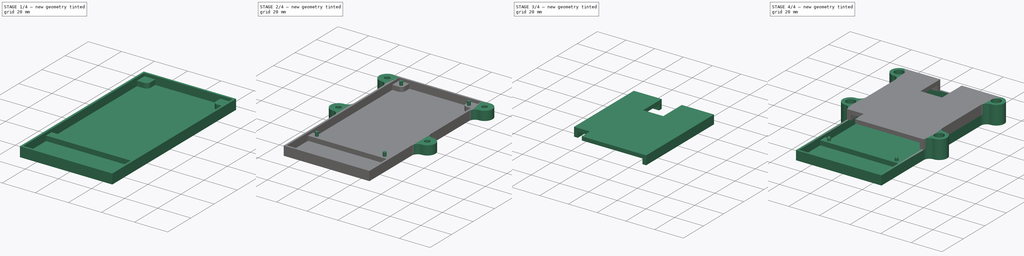
[diagram: build sequence overview — one tinted view per stage of 4, left to right]
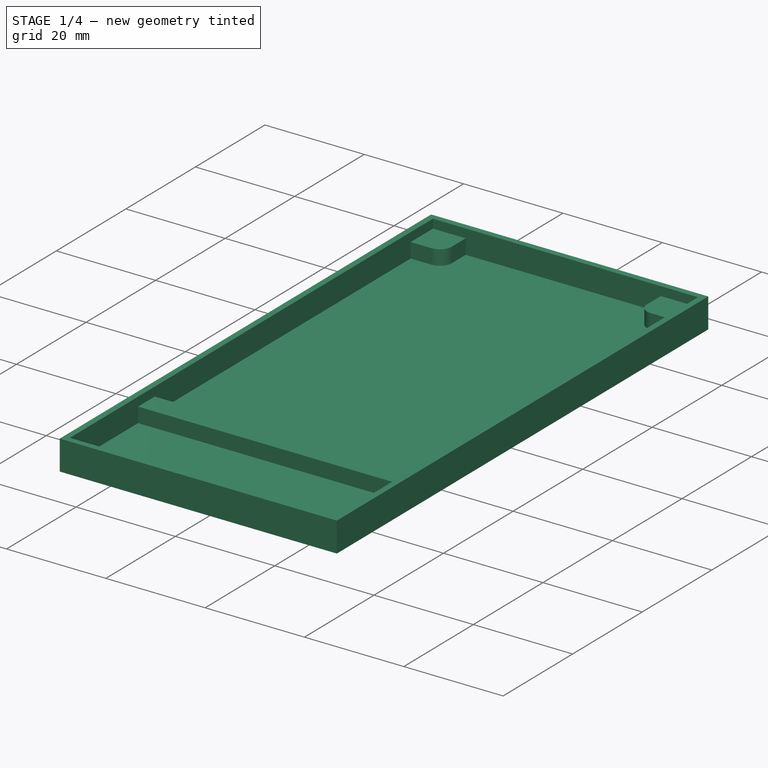
[diagram: stage 1 of 4 — iso view after this stage's code; geometry added in this stage tinted green]
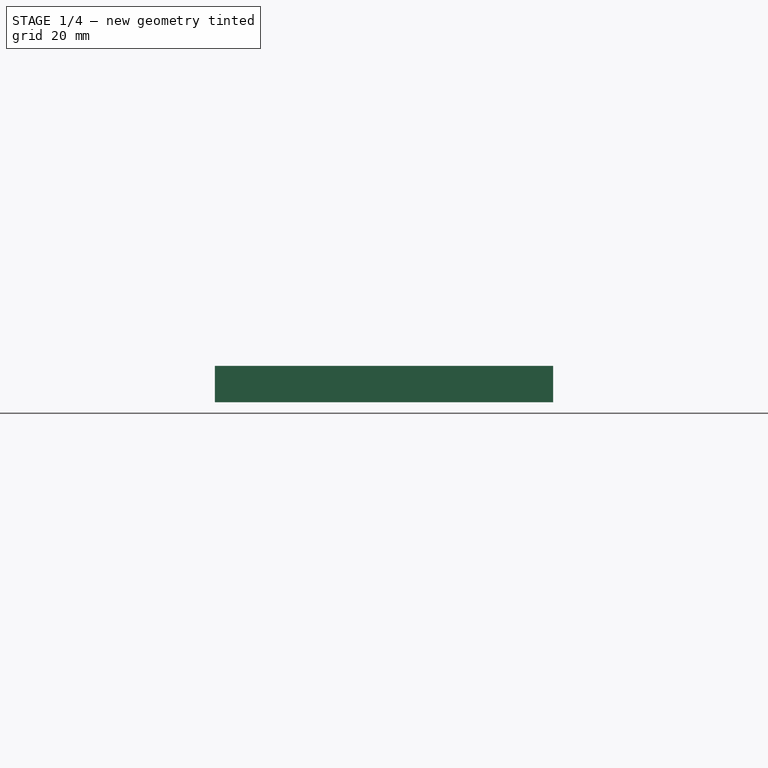
[diagram: stage 1 of 4 — front view after this stage's code; geometry added in this stage tinted green]
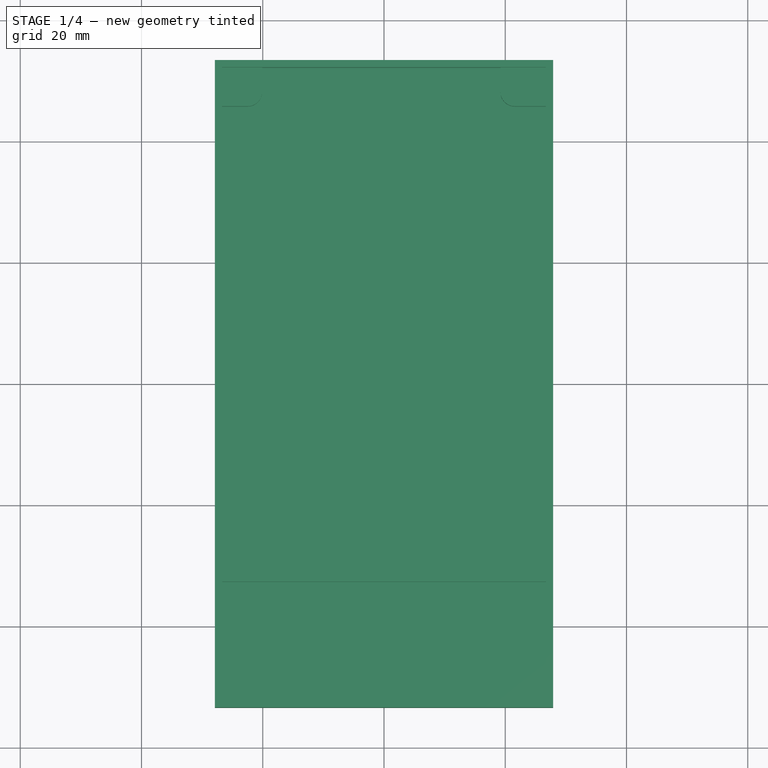
[diagram: stage 1 of 4 — top view after this stage's code; geometry added in this stage tinted green]
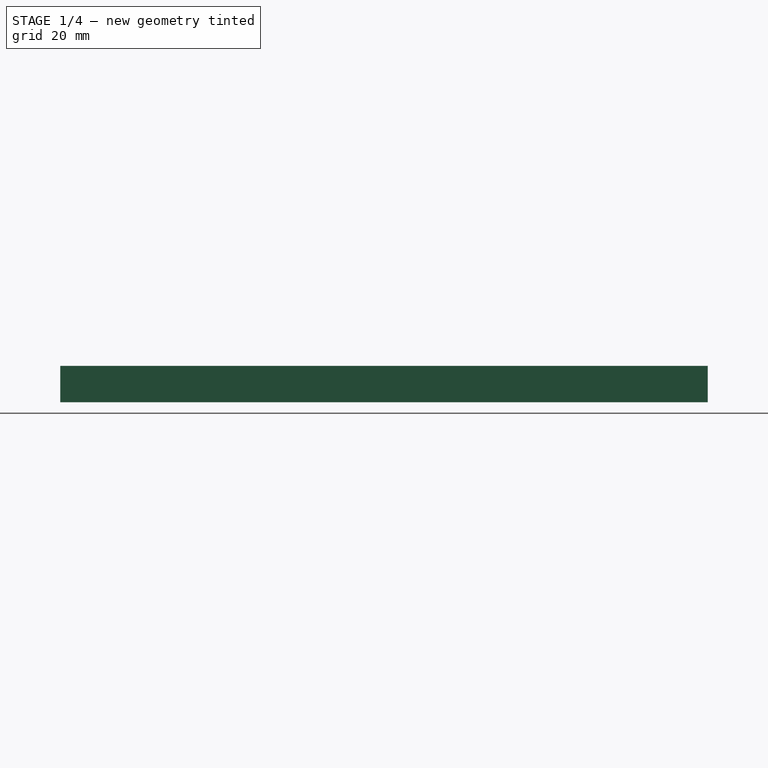
[diagram: stage 1 of 4 — right view after this stage's code; geometry added in this stage tinted green]
FCSTD DOCUMENT  (FreeCAD 0.17R13541 (Git))
Label: DragonCase
License: All rights reserved
LicenseURL: http://en.wikipedia.org/wiki/All_rights_reserved
objects: Sketcher::SketchObject×11, PartDesign::Pad×10, Spreadsheet::Sheet×2, PartDesign::Body×2, PartDesign::Chamfer×1, PartDesign::Pocket×1, App::Part×1
note: 36 computed .brp shape members not serialized (recipe doc carries the construction recipe); baked Part::Feature solids carry a one-line shape summary decoded from their .brp

FEATURE [Sketcher::SketchObject] Sketch  label="Base"
  MapMode = 5
  Support = -> [XY_Plane001]
  expr: Constraints[42] = Spreadsheet.WallThickness + Spreadsheet.Tolerance
  expr: Constraints.HoleOffsetX = Spreadsheet.HoleOffsetX
  expr: Constraints.HoleOffsetY = Spreadsheet.HoleOffsetY
  expr: Constraints.Length = Spreadsheet.BoardLength
  expr: Constraints.HoleYD = Spreadsheet.HoleYD
  expr: Constraints.Width = Spreadsheet.BoardWidth
  expr: Constraints.HoleXD = Spreadsheet.HoleXD
  sketch-geometry (40):
    g0: LineSegment [constr] StartX=-26.5 StartY=52 StartZ=0 EndX=26.5 EndY=52 EndZ=0
    g1: LineSegment [constr] StartX=26.5 StartY=52 StartZ=0 EndX=26.5 EndY=-52 EndZ=0
    g2: LineSegment [constr] StartX=26.5 StartY=-52 StartZ=0 EndX=-26.5 EndY=-52 EndZ=0
    g3: LineSegment [constr] StartX=-26.5 StartY=-52 StartZ=0 EndX=-26.5 EndY=52 EndZ=0
    g4: Circle [constr] CenterX=-22.5 CenterY=48.2 CenterZ=0 NormalX=0 NormalY=0 NormalZ=1 AngleXU=0 Radius=1.25
    g5: Circle [constr] CenterX=21.6 CenterY=48.2 CenterZ=0 NormalX=0 NormalY=0 NormalZ=1 AngleXU=0 Radius=1.25
    g6: LineSegment [constr] StartX=-22.5 StartY=48.2 StartZ=0 EndX=21.6 EndY=48.2 EndZ=0
    g7: LineSegment [constr] StartX=-22.5 StartY=48.2 StartZ=0 EndX=-22.5 EndY=-30.2 EndZ=0
    g8: LineSegment [constr] StartX=-22.5 StartY=-30.2 StartZ=0 EndX=21.6 EndY=-30.2 EndZ=0
    g9: Circle [constr] CenterX=-22.5 CenterY=-30.2 CenterZ=0 NormalX=0 NormalY=0 NormalZ=1 AngleXU=0 Radius=1.25
    g10: Circle [constr] CenterX=21.6 CenterY=-30.2 CenterZ=0 NormalX=0 NormalY=0 NormalZ=1 AngleXU=0 Radius=1.25
    g11: LineSegment StartX=-27.9 StartY=53.4 StartZ=0 EndX=27.9 EndY=53.4 EndZ=0
    g12: LineSegment StartX=27.9 StartY=-53.4 StartZ=0 EndX=-27.9 EndY=-53.4 EndZ=0
    g13: LineSegment [constr] StartX=-26.5 StartY=52 StartZ=0 EndX=-26.5 EndY=53.4 EndZ=0
    g14: LineSegment [constr] StartX=26.5 StartY=52 StartZ=0 EndX=27.9 EndY=52 EndZ=0
    g15: LineSegment [constr] StartX=26.5 StartY=-52 StartZ=0 EndX=26.5 EndY=-53.4 EndZ=0
    g16: LineSegment [constr] StartX=-26.5 StartY=-52 StartZ=0 EndX=-27.9 EndY=-52 EndZ=0
    g17: LineSegment StartX=27.9 StartY=53.4 StartZ=0 EndX=27.9 EndY=-53.4 EndZ=0
    g18: LineSegment StartX=-27.9 StartY=53.4 StartZ=0 EndX=-27.9 EndY=-53.4 EndZ=0
    g19: LineSegment [constr] StartX=21.6 StartY=48.2 StartZ=0 EndX=21.6 EndY=-30.2 EndZ=0
    g20: LineSegment [constr] StartX=-20.5 StartY=45.8 StartZ=0 EndX=19.6 EndY=45.8 EndZ=0
    g21: LineSegment [constr] StartX=21.6 StartY=43.8 StartZ=0 EndX=21.6 EndY=-25.8 EndZ=0
    g22: LineSegment [constr] StartX=19.6 StartY=-27.8 StartZ=0 EndX=-20.5 EndY=-27.8 EndZ=0
    g23: LineSegment [constr] StartX=-22.5 StartY=-25.8 StartZ=0 EndX=-22.5 EndY=43.8 EndZ=0
    g24: LineSegment [constr] StartX=-20.5 StartY=-32.6 StartZ=0 EndX=19.6 EndY=-32.6 EndZ=0
    g25: LineSegment [constr] StartX=21.6 StartY=-34.6 StartZ=0 EndX=21.6 EndY=-45.1 EndZ=0
    g26: LineSegment [constr] StartX=19.6 StartY=-47.1 StartZ=0 EndX=-20.5 EndY=-47.1 EndZ=0
    g27: LineSegment [constr] StartX=-22.5 StartY=-45.1 StartZ=0 EndX=-22.5 EndY=-34.6 EndZ=0
    g28: ArcOfCircle [constr] CenterX=-20.5 CenterY=43.8 CenterZ=0 NormalX=0 NormalY=0 NormalZ=1 AngleXU=0 Radius=2 StartAngle=1.5708 EndAngle=3.14159
    g29: ArcOfCircle [constr] CenterX=19.6 CenterY=43.8 CenterZ=0 NormalX=0 NormalY=0 NormalZ=1 AngleXU=0 Radius=2 StartAngle=0 EndAngle=1.5708
    g30: ArcOfCircle [constr] CenterX=-20.5 CenterY=-25.8 CenterZ=0 NormalX=0 NormalY=0 NormalZ=1 AngleXU=0 Radius=2 StartAngle=3.14159 EndAngle=4.71239
    g31: ArcOfCircle [constr] CenterX=19.6 CenterY=-25.8 CenterZ=0 NormalX=0 NormalY=0 NormalZ=1 AngleXU=0 Radius=2 StartAngle=4.71239 EndAngle=6.28319
    g32: ArcOfCircle [constr] CenterX=-20.5 CenterY=-34.6 CenterZ=0 NormalX=0 NormalY=0 NormalZ=1 AngleXU=0 Radius=2 StartAngle=1.5708 EndAngle=3.14159
    g33: ArcOfCircle [constr] CenterX=19.6 CenterY=-34.6 CenterZ=0 NormalX=0 NormalY=0 NormalZ=1 AngleXU=0 Radius=2 StartAngle=0 EndAngle=1.5708
    g34: ArcOfCircle [constr] CenterX=19.6 CenterY=-45.1 CenterZ=0 NormalX=0 NormalY=0 NormalZ=1 AngleXU=0 Radius=2 StartAngle=4.71239 EndAngle=6.28319
    g35: ArcOfCircle [constr] CenterX=-20.5 CenterY=-45.1 CenterZ=0 NormalX=0 NormalY=0 NormalZ=1 AngleXU=0 Radius=2 StartAngle=3.14159 EndAngle=4.71239
    g36: LineSegment [constr] StartX=21.6 StartY=-45.1 StartZ=0 EndX=26.5 EndY=-45.1 EndZ=0
    g37: LineSegment [constr] StartX=19.6 StartY=-47.1 StartZ=0 EndX=19.6 EndY=-52 EndZ=0
    g38: LineSegment [constr] StartX=-26.5 StartY=-14 StartZ=0 EndX=26.5 EndY=-14 EndZ=0
    g39: LineSegment [constr] StartX=-26.5 StartY=-6 StartZ=0 EndX=26.5 EndY=-6 EndZ=0
  constraints (110):
    c: Coincident(g0,g1)
    c: Coincident(g1,g2)
    c: Coincident(g2,g3)
    c: Coincident(g3,g0)
    c: Horizontal(g0)
    c: Horizontal(g2)
    c: Vertical(g1)
    c: Vertical(g3)
    c: DistanceY(g3,g3) = 104  'Length'
    c: DistanceX(g0,g0) = 53  'Width'
    c: Coincident(g6,g4)
    c: Coincident(g6,g5)
    c: Horizontal(g6)
    c: DistanceX(g6,g6) = 44.1  'HoleXD'
    c: Equal(g4,g5)
    c: Radius(g4) = 1.25
    c: DistanceY(g4,g0) = 3.8  'HoleOffsetY'
    c: DistanceX(g0,g4) = 4  'HoleOffsetX'
    c: Coincident(g7,g4)
    c: Vertical(g7)
    c: DistanceY(g7,g7) = 78.4  'HoleYD'
    c: Coincident(g8,g7)
    c: Horizontal(g8)
    c: Coincident(g9,g7)
    c: Coincident(g10,g8)
    c: Equal(g5,g10)
    c: Equal(g10,g9)
    c: Horizontal(g11)
    c: Horizontal(g12)
    c: Coincident(g13,g0)
    c: PointOnObject(g13,g11)
    c: Vertical(g13)
    c: Coincident(g14,g0)
    c: Horizontal(g14)
    c: Coincident(g15,g1)
    c: PointOnObject(g15,g12)
    c: Vertical(g15)
    c: Coincident(g16,g2)
    c: Horizontal(g16)
    c: Equal(g13,g14)
    c: Equal(g14,g15)
    c: Equal(g15,g16)
    c: DistanceX(g14,g14) = 1.4
    c: DistanceX(g11,g11) = 55.8  'RealWidth'
    c: DistanceY(g12,g11) = 106.8  'RealHeight'
    c: Symmetric(g11,g12,g-1)
    c: Vertical(g17)
    c: Vertical(g18)
    c: Coincident(g17,g11)
    c: PointOnObject(g14,g17)
    c: Coincident(g18,g11)
    c: Coincident(g18,g12)
    c: PointOnObject(g16,g18)
    c: Coincident(g12,g17)
    c: Coincident(g19,g5)
    c: Coincident(g19,g8)
    c: Vertical(g19)
    c: Horizontal(g20)
    c: Horizontal(g22)
    c: Vertical(g21)
    c: Vertical(g23)
    c: Horizontal(g24)
    c: Horizontal(g26)
    c: Vertical(g25)
    c: Vertical(g27)
    c: Tangent(g20,g28) = 1.5708
    c: Tangent(g23,g28) = 1.5708
    c: Tangent(g20,g29) = 1.5708
    c: Tangent(g21,g29) = 1.5708
    c: Tangent(g22,g30) = 1.5708
    c: Tangent(g23,g30) = 1.5708
    c: Tangent(g21,g31) = 1.5708
    c: Tangent(g22,g31) = 1.5708
    c: Tangent(g24,g32) = 1.5708
    c: Tangent(g27,g32) = 1.5708
    c: Tangent(g24,g33) = 1.5708
    c: Tangent(g25,g33) = 1.5708
    c: Tangent(g25,g34) = 1.5708
    c: Tangent(g26,g34) = 1.5708
    c: Tangent(g26,g35) = 1.5708
    c: Tangent(g27,g35) = 1.5708
    c: PointOnObject(g23,g7)
    c: PointOnObject(g21,g19)
    c: Radius(g28) = 2
    c: Equal(g28,g29)
    c: Equal(g29,g31)
    c: Equal(g31,g30)
    c: Equal(g30,g32)
    c: Equal(g32,g33)
    c: Equal(g33,g34)
    c: Equal(g34,g35)
    c: Symmetric(g24,g22,g8)
    c: DistanceY(g24,g7) = 2.4
    c: DistanceY(g20,g5) = 2.4
    c: Coincident(g36,g25)
    c: PointOnObject(g36,g1)
    c: Horizontal(g36)
    c: Coincident(g37,g26)
    c: PointOnObject(g37,g2)
    c: Vertical(g37)
    c: Equal(g37,g36)
    c: PointOnObject(g25,g19)
    c: PointOnObject(g38,g3)
    c: PointOnObject(g38,g1)
    c: Horizontal(g38)
    c: DistanceY(g38,g0) = 66  'CoverLength'
    c: PointOnObject(g39,g3)
    c: PointOnObject(g39,g1)
    c: Horizontal(g39)
    c: DistanceY(g38,g39) = 8  'CoverCutLength'
FEATURE [PartDesign::Pad] Pad  label="Base_"
  Length = 1.2
  Length2 = 100
  Profile = -> Sketch
  Type = 0
  expr: Length = Spreadsheet.WallThickness
FEATURE [Spreadsheet::Sheet] Spreadsheet
  cells = B2=BoardWidth; C2(BoardWidth)==53mm; B3=BoardLength; C3(BoardLength)==104mm; B4=HoleXD; C4(HoleXD)==44.100000000000001mm; B5=HoleYD; C5(HoleYD)==78.400000000000006mm; B6=HoleOffsetX; C6(HoleOffsetX)==4mm; B7=HoleOffsetY; C7(HoleOffsetY)==3.7999999999999998mm; B8=Tolerance; C8(Tolerance)==0.20000000000000001mm; B9=WallThickness; C9(WallThickness)==1.2mm; B10=WallHeight; C10(WallHeight)==2mm; B11=Elevation; C11(Elevation)==3mm; B12=BoardThickness; C12(BoardThickness)==1.8mm
FEATURE [Sketcher::SketchObject] Sketch001  label="Walls"
  AttachmentOffset = pos=(0,0,1.2) rot=(0,0,1;0rad)
  MapMode = 5
  Placement = pos=(0,0,1.2) rot=(0,0,1;0rad)
  Support = -> [XY_Plane001]
  expr: Constraints[69] = Spreadsheet.WallThickness
  expr: Constraints[51] = Spreadsheet.WallThickness + Spreadsheet.Tolerance
  expr: Constraints.HoleOffset = Spreadsheet.HoleOffsetX
  expr: Constraints.Length = Spreadsheet.BoardLength
  expr: Constraints.HoleYD = Spreadsheet.HoleYD
  expr: Constraints.Width = Spreadsheet.BoardWidth
  expr: Constraints.HoleXD = Spreadsheet.HoleXD
  expr: AttachmentOffset.Base.z = Base_.Length
  expr: Constraints[16] = Spreadsheet.HoleOffsetY
  sketch-geometry (27):
    g0: LineSegment [constr] StartX=-26.5 StartY=52 StartZ=0 EndX=26.5 EndY=52 EndZ=0
    g1: LineSegment [constr] StartX=26.5 StartY=52 StartZ=0 EndX=26.5 EndY=-52 EndZ=0
    g2: LineSegment [constr] StartX=26.5 StartY=-52 StartZ=0 EndX=-26.5 EndY=-52 EndZ=0
    g3: LineSegment [constr] StartX=-26.5 StartY=-52 StartZ=0 EndX=-26.5 EndY=52 EndZ=0
    g4: Circle [constr] CenterX=-22.5 CenterY=48.2 CenterZ=0 NormalX=0 NormalY=0 NormalZ=1 AngleXU=0 Radius=1.25
    g5: Circle [constr] CenterX=21.6 CenterY=48.2 CenterZ=0 NormalX=0 NormalY=0 NormalZ=1 AngleXU=0 Radius=1.25
    g6: LineSegment [constr] StartX=-22.5 StartY=48.2 StartZ=0 EndX=21.6 EndY=48.2 EndZ=0
    g7: LineSegment [constr] StartX=-22.5 StartY=48.2 StartZ=0 EndX=-22.5 EndY=-30.2 EndZ=0
    g8: LineSegment [constr] StartX=-22.5 StartY=-30.2 StartZ=0 EndX=21.6 EndY=-30.2 EndZ=0
    g9: Circle [constr] CenterX=-22.5 CenterY=-30.2 CenterZ=0 NormalX=0 NormalY=0 NormalZ=1 AngleXU=0 Radius=1.25
    g10: Circle [constr] CenterX=21.6 CenterY=-30.2 CenterZ=0 NormalX=0 NormalY=0 NormalZ=1 AngleXU=0 Radius=1.25
    g11: LineSegment StartX=-27.9 StartY=53.4 StartZ=0 EndX=27.9 EndY=53.4 EndZ=0
    g12: LineSegment StartX=27.9 StartY=53.4 StartZ=0 EndX=27.9 EndY=-53.4 EndZ=0
    g13: LineSegment StartX=27.9 StartY=-53.4 StartZ=0 EndX=-27.9 EndY=-53.4 EndZ=0
    g14: LineSegment StartX=-27.9 StartY=-53.4 StartZ=0 EndX=-27.9 EndY=53.4 EndZ=0
    g15: LineSegment [constr] StartX=-26.5 StartY=52 StartZ=0 EndX=-26.5 EndY=53.4 EndZ=0
    g16: LineSegment [constr] StartX=26.5 StartY=52 StartZ=0 EndX=27.9 EndY=52 EndZ=0
    g17: LineSegment [constr] StartX=26.5 StartY=-52 StartZ=0 EndX=26.5 EndY=-53.4 EndZ=0
    g18: LineSegment [constr] StartX=-26.5 StartY=-52 StartZ=0 EndX=-27.9 EndY=-52 EndZ=0
    g19: LineSegment StartX=-26.7 StartY=52.2 StartZ=0 EndX=26.7 EndY=52.2 EndZ=0
    g20: LineSegment StartX=26.7 StartY=52.2 StartZ=0 EndX=26.7 EndY=-52.2 EndZ=0
    g21: LineSegment StartX=26.7 StartY=-52.2 StartZ=0 EndX=-26.7 EndY=-52.2 EndZ=0
    g22: LineSegment StartX=-26.7 StartY=-52.2 StartZ=0 EndX=-26.7 EndY=52.2 EndZ=0
    g23: LineSegment [constr] StartX=26.7 StartY=-52.2 StartZ=0 EndX=27.9 EndY=-52.2 EndZ=0
    g24: LineSegment [constr] StartX=26.7 StartY=-52.2 StartZ=0 EndX=26.7 EndY=-53.4 EndZ=0
    g25: LineSegment [constr] StartX=-8.5 StartY=53.4 StartZ=0 EndX=-8.5 EndY=52.2 EndZ=0
    g26: LineSegment [constr] StartX=5.5 StartY=53.4 StartZ=0 EndX=5.5 EndY=52.2 EndZ=0
  constraints (80):
    c: Coincident(g0,g1)
    c: Coincident(g1,g2)
    c: Coincident(g2,g3)
    c: Coincident(g3,g0)
    c: Horizontal(g0)
    c: Horizontal(g2)
    c: Vertical(g1)
    c: Vertical(g3)
    c: DistanceY(g3,g3) = 104  'Length'
    c: DistanceX(g0,g0) = 53  'Width'
    c: Coincident(g6,g4)
    c: Coincident(g6,g5)
    c: Horizontal(g6)
    c: DistanceX(g6,g6) = 44.1  'HoleXD'
    c: Equal(g4,g5)
    c: Radius(g4) = 1.25
    c: DistanceY(g4,g0) = 3.8
    c: DistanceX(g0,g4) = 4  'HoleOffset'
    c: Coincident(g7,g4)
    c: Vertical(g7)
    c: DistanceY(g7,g7) = 78.4  'HoleYD'
    c: Coincident(g8,g7)
    c: Horizontal(g8)
    c: Equal(g8,g6)
    c: Coincident(g9,g7)
    c: Coincident(g10,g8)
    c: Equal(g5,g10)
    c: Equal(g10,g9)
    c: Coincident(g11,g12)
    c: Coincident(g12,g13)
    c: Coincident(g13,g14)
    c: Coincident(g14,g11)
    c: Horizontal(g11)
    c: Horizontal(g13)
    c: Vertical(g12)
    c: Vertical(g14)
    c: Coincident(g15,g0)
    c: PointOnObject(g15,g11)
    c: Vertical(g15)
    c: Coincident(g16,g0)
    c: PointOnObject(g16,g12)
    c: Horizontal(g16)
    c: Coincident(g17,g1)
    c: PointOnObject(g17,g13)
    c: Vertical(g17)
    c: Coincident(g18,g2)
    c: PointOnObject(g18,g14)
    c: Horizontal(g18)
    c: Equal(g15,g16)
    c: Equal(g16,g17)
    c: Equal(g17,g18)
    c: DistanceX(g16,g16) = 1.4
    c: DistanceX(g11,g11) = 55.8  'RealWidth'
    c: DistanceY(g14,g14) = 106.8  'RealHeight'
    c: Symmetric(g12,g11,g-1)
    c: Coincident(g19,g20)
    c: Coincident(g20,g21)
    c: Coincident(g21,g22)
    c: Coincident(g22,g19)
    c: Horizontal(g19)
    c: Horizontal(g21)
    c: Vertical(g20)
    c: Vertical(g22)
    c: Coincident(g23,g20)
    c: PointOnObject(g23,g12)
    c: Horizontal(g23)
    c: Coincident(g24,g20)
    c: PointOnObject(g24,g13)
    c: Vertical(g24)
    c: DistanceX(g23,g23) = 1.2
    c: Equal(g23,g24)
    c: Symmetric(g20,g19,g-1)
    c: PointOnObject(g25,g11)
    c: PointOnObject(g25,g19)
    c: Vertical(g25)
    c: DistanceX(g0,g25) = 18
    c: PointOnObject(g26,g11)
    c: PointOnObject(g26,g19)
    c: Vertical(g26)
    c: DistanceX(g26,g0) = 21
FEATURE [PartDesign::Pad] Pad001  label="Walls_"
  BaseFeature = -> Pad
  Length = 4.8
  Length2 = 100
  Profile = -> Sketch001
  Refine = true
  Type = 0
  expr: Length = Spreadsheet.Elevation + Spreadsheet.BoardThickness
FEATURE [Sketcher::SketchObject] Sketch002  label="Elevator"
  AttachmentOffset = pos=(0,0,1.2) rot=(0,0,1;0rad)
  MapMode = 5
  Placement = pos=(0,0,1.2) rot=(0,0,1;0rad)
  Support = -> [XY_Plane001]
  expr: Constraints[69] = Spreadsheet.WallThickness
  expr: Constraints[51] = Spreadsheet.WallThickness + Spreadsheet.Tolerance
  expr: Constraints.HoleOffset = Spreadsheet.HoleOffsetX
  expr: Constraints.Length = Spreadsheet.BoardLength
  expr: Constraints.HoleYD = Spreadsheet.HoleYD
  expr: Constraints.Width = Spreadsheet.BoardWidth
  expr: Constraints.HoleXD = Spreadsheet.HoleXD
  expr: AttachmentOffset.Base.z = Base_.Length
  expr: Constraints[16] = Spreadsheet.HoleOffsetY
  sketch-geometry (40):
    g0: LineSegment [constr] StartX=-26.5 StartY=52 StartZ=0 EndX=26.5 EndY=52 EndZ=0
    g1: LineSegment [constr] StartX=26.5 StartY=52 StartZ=0 EndX=26.5 EndY=-52 EndZ=0
    g2: LineSegment [constr] StartX=26.5 StartY=-52 StartZ=0 EndX=-26.5 EndY=-52 EndZ=0
    g3: LineSegment [constr] StartX=-26.5 StartY=-52 StartZ=0 EndX=-26.5 EndY=52 EndZ=0
    g4: Circle [constr] CenterX=-22.5 CenterY=48.2 CenterZ=0 NormalX=0 NormalY=0 NormalZ=1 AngleXU=0 Radius=1.25
    g5: Circle [constr] CenterX=21.6 CenterY=48.2 CenterZ=0 NormalX=0 NormalY=0 NormalZ=1 AngleXU=0 Radius=1.25
    g6: LineSegment [constr] StartX=-22.5 StartY=48.2 StartZ=0 EndX=21.6 EndY=48.2 EndZ=0
    g7: LineSegment [constr] StartX=-22.5 StartY=48.2 StartZ=0 EndX=-22.5 EndY=-30.2 EndZ=0
    g8: LineSegment [constr] StartX=-22.5 StartY=-30.2 StartZ=0 EndX=21.6 EndY=-30.2 EndZ=0
    g9: Circle [constr] CenterX=-22.5 CenterY=-30.2 CenterZ=0 NormalX=0 NormalY=0 NormalZ=1 AngleXU=0 Radius=1.25
    g10: Circle [constr] CenterX=21.6 CenterY=-30.2 CenterZ=0 NormalX=0 NormalY=0 NormalZ=1 AngleXU=0 Radius=1.25
    g11: LineSegment [constr] StartX=-27.9 StartY=53.4 StartZ=0 EndX=27.9 EndY=53.4 EndZ=0
    g12: LineSegment [constr] StartX=27.9 StartY=53.4 StartZ=0 EndX=27.9 EndY=-53.4 EndZ=0
    g13: LineSegment [constr] StartX=27.9 StartY=-53.4 StartZ=0 EndX=-27.9 EndY=-53.4 EndZ=0
    g14: LineSegment [constr] StartX=-27.9 StartY=-53.4 StartZ=0 EndX=-27.9 EndY=53.4 EndZ=0
    g15: LineSegment [constr] StartX=-26.5 StartY=52 StartZ=0 EndX=-26.5 EndY=53.4 EndZ=0
    g16: LineSegment [constr] StartX=26.5 StartY=52 StartZ=0 EndX=27.9 EndY=52 EndZ=0
    g17: LineSegment [constr] StartX=26.5 StartY=-52 StartZ=0 EndX=26.5 EndY=-53.4 EndZ=0
    g18: LineSegment [constr] StartX=-26.5 StartY=-52 StartZ=0 EndX=-27.9 EndY=-52 EndZ=0
    g19: LineSegment [constr] StartX=-26.7 StartY=52.2 StartZ=0 EndX=26.7 EndY=52.2 EndZ=0
    g20: LineSegment [constr] StartX=26.7 StartY=52.2 StartZ=0 EndX=26.7 EndY=-52.2 EndZ=0
    g21: LineSegment [constr] StartX=26.7 StartY=-52.2 StartZ=0 EndX=-26.7 EndY=-52.2 EndZ=0
    g22: LineSegment [constr] StartX=-26.7 StartY=-52.2 StartZ=0 EndX=-26.7 EndY=52.2 EndZ=0
    g23: LineSegment [constr] StartX=26.7 StartY=-52.2 StartZ=0 EndX=27.9 EndY=-52.2 EndZ=0
    g24: LineSegment [constr] StartX=26.7 StartY=-52.2 StartZ=0 EndX=26.7 EndY=-53.4 EndZ=0
    g25: LineSegment StartX=-26.7 StartY=52.2 StartZ=0 EndX=-26.7 EndY=45.8 EndZ=0
    g26: LineSegment StartX=-26.7 StartY=45.8 StartZ=0 EndX=-22.5 EndY=45.8 EndZ=0
    g27: LineSegment StartX=-20.1 StartY=48.2 StartZ=0 EndX=-20.1 EndY=52.2 EndZ=0
    g28: LineSegment StartX=-20.1 StartY=52.2 StartZ=0 EndX=-26.7 EndY=52.2 EndZ=0
    g29: ArcOfCircle CenterX=-22.5 CenterY=48.2 CenterZ=0 NormalX=0 NormalY=0 NormalZ=1 AngleXU=0 Radius=2.4 StartAngle=4.71239 EndAngle=6.28319
    g30: LineSegment StartX=26.7 StartY=52.2 StartZ=0 EndX=19.2 EndY=52.2 EndZ=0
    g31: LineSegment StartX=19.2 StartY=52.2 StartZ=0 EndX=19.2 EndY=48.2 EndZ=0
    g32: LineSegment StartX=21.6 StartY=45.8 StartZ=0 EndX=26.7 EndY=45.8 EndZ=0
    g33: LineSegment StartX=26.7 StartY=45.8 StartZ=0 EndX=26.7 EndY=52.2 EndZ=0
    g34: ArcOfCircle CenterX=21.6 CenterY=48.2 CenterZ=0 NormalX=0 NormalY=0 NormalZ=1 AngleXU=0 Radius=2.4 StartAngle=3.14159 EndAngle=4.71239
    g35: LineSegment [constr] StartX=21.6 StartY=48.2 StartZ=0 EndX=21.6 EndY=-30.2 EndZ=0
    g36: LineSegment StartX=-26.7 StartY=-27.8 StartZ=0 EndX=26.7 EndY=-27.8 EndZ=0
    g37: LineSegment StartX=26.7 StartY=-27.8 StartZ=0 EndX=26.7 EndY=-32.6 EndZ=0
    g38: LineSegment StartX=26.7 StartY=-32.6 StartZ=0 EndX=-26.7 EndY=-32.6 EndZ=0
    g39: LineSegment StartX=-26.7 StartY=-32.6 StartZ=0 EndX=-26.7 EndY=-27.8 EndZ=0
  constraints (114):
    c: Coincident(g0,g1)
    c: Coincident(g1,g2)
    c: Coincident(g2,g3)
    c: Coincident(g3,g0)
    c: Horizontal(g0)
    c: Horizontal(g2)
    c: Vertical(g1)
    c: Vertical(g3)
    c: DistanceY(g3,g3) = 104  'Length'
    c: DistanceX(g0,g0) = 53  'Width'
    c: Coincident(g6,g4)
    c: Coincident(g6,g5)
    c: Horizontal(g6)
    c: DistanceX(g6,g6) = 44.1  'HoleXD'
    c: Equal(g4,g5)
    c: Radius(g4) = 1.25
    c: DistanceY(g4,g0) = 3.8
    c: DistanceX(g0,g4) = 4  'HoleOffset'
    c: Coincident(g7,g4)
    c: Vertical(g7)
    c: DistanceY(g7,g7) = 78.4  'HoleYD'
    c: Coincident(g8,g7)
    c: Horizontal(g8)
    c: Equal(g8,g6)
    c: Coincident(g9,g7)
    c: Coincident(g10,g8)
    c: Equal(g5,g10)
    c: Equal(g10,g9)
    c: Coincident(g11,g12)
    c: Coincident(g12,g13)
    c: Coincident(g13,g14)
    c: Coincident(g14,g11)
    c: Horizontal(g11)
    c: Horizontal(g13)
    c: Vertical(g12)
    c: Vertical(g14)
    c: Coincident(g15,g0)
    c: PointOnObject(g15,g11)
    c: Vertical(g15)
    c: Coincident(g16,g0)
    c: PointOnObject(g16,g12)
    c: Horizontal(g16)
    c: Coincident(g17,g1)
    c: PointOnObject(g17,g13)
    c: Vertical(g17)
    c: Coincident(g18,g2)
    c: PointOnObject(g18,g14)
    c: Horizontal(g18)
    c: Equal(g15,g16)
    c: Equal(g16,g17)
    c: Equal(g17,g18)
    c: DistanceX(g16,g16) = 1.4
    c: DistanceX(g11,g11) = 55.8  'RealWidth'
    c: DistanceY(g14,g14) = 106.8  'RealHeight'
    c: Symmetric(g12,g11,g-1)
    c: Coincident(g19,g20)
    c: Coincident(g20,g21)
    c: Coincident(g21,g22)
    c: Coincident(g22,g19)
    c: Horizontal(g19)
    c: Horizontal(g21)
    c: Vertical(g20)
    c: Vertical(g22)
    c: Coincident(g23,g20)
    c: PointOnObject(g23,g12)
    c: Horizontal(g23)
    c: Coincident(g24,g20)
    c: PointOnObject(g24,g13)
    c: Vertical(g24)
    c: DistanceX(g23,g23) = 1.2
    c: Equal(g23,g24)
    c: Symmetric(g20,g19,g-1)
    c: Coincident(g19,g25)
    c: Vertical(g25)
    c: Coincident(g25,g26)
    c: PointOnObject(g26,g7)
    c: Horizontal(g26)
    c: PointOnObject(g27,g6)
    c: PointOnObject(g27,g19)
    c: Vertical(g27)
    c: Coincident(g27,g28)
    c: Coincident(g28,g25)
    c: Coincident(g29,g4)
    c: Coincident(g29,g26)
    c: Coincident(g29,g27)
    c: Radius(g29) = 2.4
    c: Coincident(g19,g30)
    c: PointOnObject(g30,g19)
    c: Coincident(g30,g31)
    c: PointOnObject(g31,g6)
    c: Vertical(g31)
    c: PointOnObject(g32,g20)
    c: Horizontal(g32)
    c: Coincident(g32,g33)
    c: Coincident(g33,g30)
    c: Coincident(g34,g5)
    c: Coincident(g34,g31)
    c: Coincident(g34,g32)
    c: Coincident(g35,g5)
    c: Coincident(g35,g8)
    c: PointOnObject(g32,g35)
    c: Equal(g29,g34)
    c: Coincident(g36,g37)
    c: Coincident(g37,g38)
    c: Coincident(g38,g39)
    c: Coincident(g39,g36)
    c: Horizontal(g36)
    c: Horizontal(g38)
    c: Vertical(g37)
    c: Vertical(g39)
    c: PointOnObject(g36,g22)
    c: PointOnObject(g37,g20)
    c: Symmetric(g36,g38,g8)
    c: DistanceY(g38,g7) = 2.4
FEATURE [PartDesign::Pad] Pad002  label="Elevator_"
  BaseFeature = -> Pad001
  Length = 3
  Length2 = 100
  Profile = -> Sketch002
  Refine = true
  Type = 0
  expr: Length = Spreadsheet.Elevation
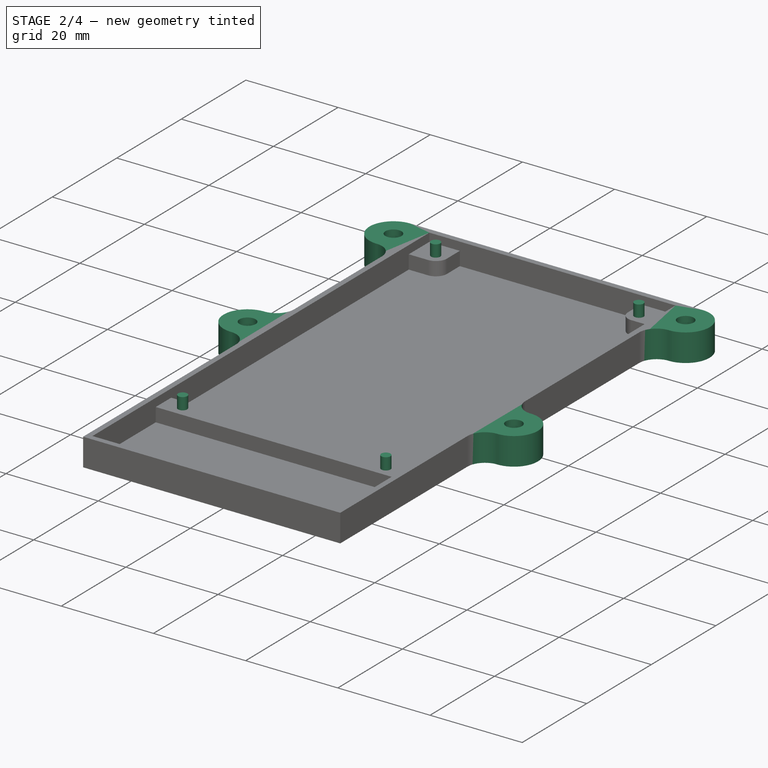
[diagram: stage 2 of 4 — iso view after this stage's code; geometry added in this stage tinted green]
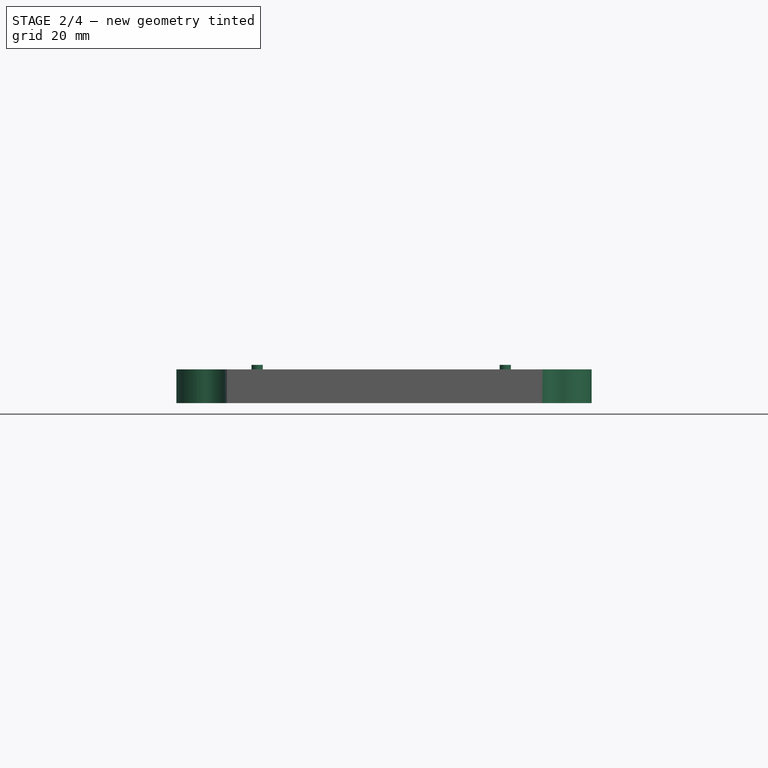
[diagram: stage 2 of 4 — front view after this stage's code; geometry added in this stage tinted green]
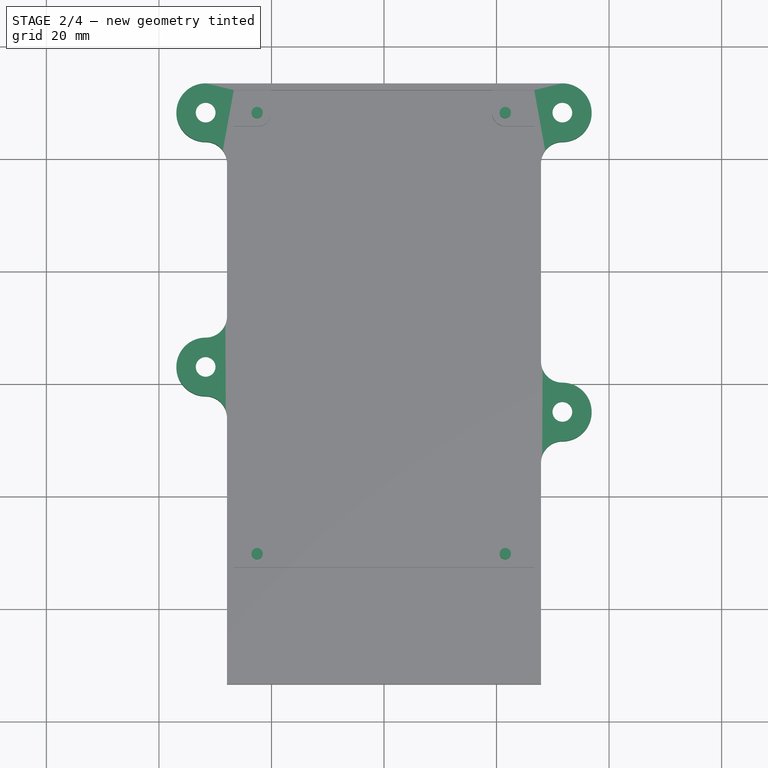
[diagram: stage 2 of 4 — top view after this stage's code; geometry added in this stage tinted green]
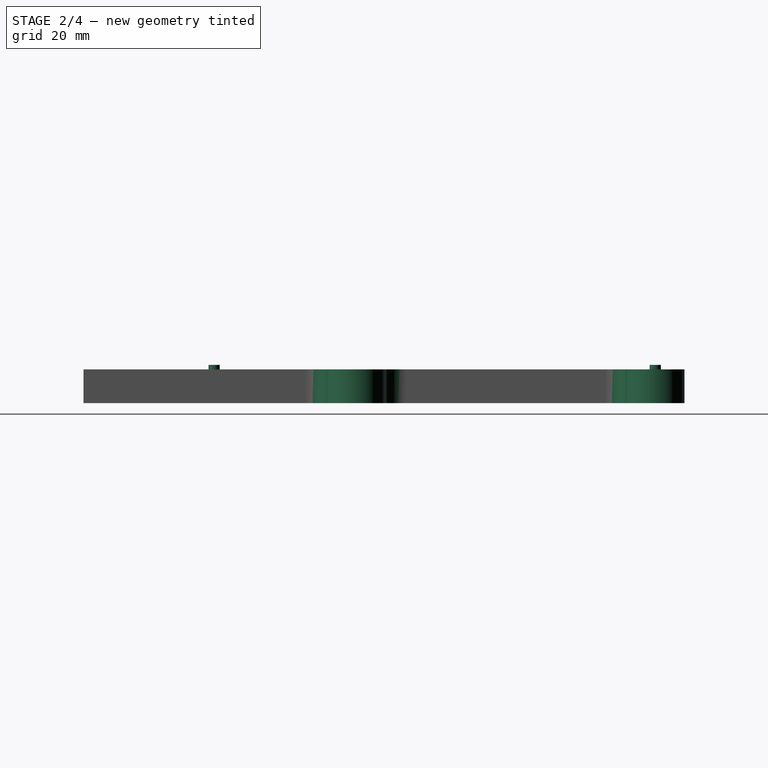
[diagram: stage 2 of 4 — right view after this stage's code; geometry added in this stage tinted green]
FEATURE [Sketcher::SketchObject] Sketch003  label="Snap"
  AttachmentOffset = pos=(0,0,4.2) rot=(0,0,1;0rad)
  MapMode = 5
  Placement = pos=(0,0,4.2) rot=(0,0,1;0rad)
  Support = -> [XY_Plane001]
  expr: Constraints.HoleYD = Spreadsheet.HoleYD
  expr: Constraints.Width = Spreadsheet.BoardWidth
  expr: Constraints.HoleXD = Spreadsheet.HoleXD
  expr: AttachmentOffset.Base.z = Elevator.AttachmentOffset.Base.z + Elevator_.Length
  expr: Constraints[16] = Spreadsheet.HoleOffsetY
  expr: Constraints.HoleOffset = Spreadsheet.HoleOffsetX
  expr: Constraints.Length = Spreadsheet.BoardLength
  sketch-geometry (11):
    g0: LineSegment [constr] StartX=-26.5412 StartY=52 StartZ=0 EndX=26.4588 EndY=52 EndZ=0
    g1: LineSegment [constr] StartX=26.4588 StartY=52 StartZ=0 EndX=26.4588 EndY=-52 EndZ=0
    g2: LineSegment [constr] StartX=26.4588 StartY=-52 StartZ=0 EndX=-26.5412 EndY=-52 EndZ=0
    g3: LineSegment [constr] StartX=-26.5412 StartY=-52 StartZ=0 EndX=-26.5412 EndY=52 EndZ=0
    g4: Circle CenterX=-22.5412 CenterY=48.2 CenterZ=0 NormalX=0 NormalY=0 NormalZ=1 AngleXU=0 Radius=1
    g5: Circle CenterX=21.5588 CenterY=48.2 CenterZ=0 NormalX=0 NormalY=0 NormalZ=1 AngleXU=0 Radius=1
    g6: LineSegment [constr] StartX=-22.5412 StartY=48.2 StartZ=0 EndX=21.5588 EndY=48.2 EndZ=0
    g7: LineSegment [constr] StartX=-22.5412 StartY=48.2 StartZ=0 EndX=-22.5412 EndY=-30.2 EndZ=0
    g8: LineSegment [constr] StartX=-22.5412 StartY=-30.2 StartZ=0 EndX=21.5588 EndY=-30.2 EndZ=0
    g9: Circle CenterX=-22.5412 CenterY=-30.2 CenterZ=0 NormalX=0 NormalY=0 NormalZ=1 AngleXU=0 Radius=1
    g10: Circle CenterX=21.5588 CenterY=-30.2 CenterZ=0 NormalX=0 NormalY=0 NormalZ=1 AngleXU=0 Radius=1
  constraints (28):
    c: Coincident(g0,g1)
    c: Coincident(g1,g2)
    c: Coincident(g2,g3)
    c: Coincident(g3,g0)
    c: Horizontal(g0)
    c: Horizontal(g2)
    c: Vertical(g1)
    c: Vertical(g3)
    c: DistanceY(g3,g3) = 104  'Length'
    c: DistanceX(g0,g0) = 53  'Width'
    c: Coincident(g6,g4)
    c: Coincident(g6,g5)
    c: Horizontal(g6)
    c: DistanceX(g6,g6) = 44.1  'HoleXD'
    c: Equal(g4,g5)
    c: Radius(g4) = 1
    c: DistanceY(g4,g0) = 3.8
    c: DistanceX(g0,g4) = 4  'HoleOffset'
    c: Coincident(g7,g4)
    c: Vertical(g7)
    c: DistanceY(g7,g7) = 78.4  'HoleYD'
    c: Coincident(g8,g7)
    c: Horizontal(g8)
    c: Equal(g8,g6)
    c: Coincident(g9,g7)
    c: Coincident(g10,g8)
    c: Equal(g5,g10)
    c: Equal(g10,g9)
FEATURE [PartDesign::Pad] Pad003  label="Snap_"
  BaseFeature = -> Pad002
  Length = 2.6
  Length2 = 100
  Profile = -> Sketch003
  Type = 0
  expr: Length = Spreadsheet.BoardThickness + 0.80000000000000004mm
FEATURE [Spreadsheet::Sheet] Spreadsheet001  label="Screws"
  cells = B4=M25Radius; C4(M25Radius)==1.45mm; B5=M25HeadRadius; C5(M25HeadRadius)==2.3999999999999999mm; B6=MHeadHeight; C6(MHeadHeight)==3mm; B7=M25NutRadius; C7(M25NutRadius)==3.1000000000000001mm; B8=M25NutHeight; C8(M25NutHeight)==2.2000000000000002mm; B9=M3Radius; C9(M3Radius)==1.75mm; B10=M3HeadRadius; C10(M3HeadRadius)==3mm; B11=M3HeadHeight; C11(M3HeadHeight)==3.3999999999999999mm; B12=M3NutRadius; C12(M3NutRadius)==3.3999999999999999mm; B13=M3NutHeight; C13(M3NutHeight)==2.6000000000000001mm; B14=M3NutDuctWidth; C14(M3NutDuctWidth)==6mm; B15=M4Radius; C15(M4Radius)==2.2000000000000002mm; B16=M4HeadRadius; C16(M4HeadRadius)==3.7000000000000002mm; B17=M4HeadHeight; C17(M4HeadHeight)==4mm; B18=M4NutRadius; C18(M4NutRadius)==4.2000000000000002mm; B19=M4NutHeight; C19(M4NutHeight)==3.2999999999999998mm; B20=M5Radius; C20(M5Radius)==2.6600000000000001mm; B21=M5HeadRadius; C21(M5HeadRadius)==4.5mm; B22=M5HeadHeight; C22(M5HeadHeight)==5mm; B23=M5NutRadius; C23(M5NutRadius)==4.75mm; B24=M5NutHeight; C24(M5NutHeight)==4mm
FEATURE [Sketcher::SketchObject] Sketch004  label="Flaps"
  MapMode = 5
  Support = -> [XY_Plane001]
  expr: Constraints[210] = Base.Constraints.CoverLength - Base.Constraints.CoverCutLength
  expr: Constraints.NutDistance = Spreadsheet.HoleOffsetX + Screws.M3NutRadius + Spreadsheet.WallThickness + Spreadsheet.Tolerance + 0.40000000000000002mm
  expr: Constraints[43] = Spreadsheet.WallThickness + Spreadsheet.Tolerance
  expr: Constraints[209] = Base.Constraints.CoverLength
  expr: Constraints[73] = Screws.M3NutRadius
  expr: Constraints.Length = Spreadsheet.BoardLength
  expr: Constraints.HoleOffsetX = Spreadsheet.HoleOffsetX
  expr: Constraints.HoleOffsetY = Spreadsheet.HoleOffsetY
  expr: Constraints.HoleYD = Spreadsheet.HoleYD
  expr: Constraints.Width = Spreadsheet.BoardWidth
  expr: Constraints.HoleXD = Spreadsheet.HoleXD
  sketch-geometry (73):
    g0: LineSegment [constr] StartX=-26.5 StartY=52 StartZ=0 EndX=26.5 EndY=52 EndZ=0
    g1: LineSegment [constr] StartX=26.5 StartY=52 StartZ=0 EndX=26.5 EndY=-52 EndZ=0
    g2: LineSegment [constr] StartX=26.5 StartY=-52 StartZ=0 EndX=-26.5 EndY=-52 EndZ=0
    g3: LineSegment [constr] StartX=-26.5 StartY=-52 StartZ=0 EndX=-26.5 EndY=52 EndZ=0
    g4: Circle [constr] CenterX=-22.5 CenterY=48.2 CenterZ=0 NormalX=0 NormalY=0 NormalZ=1 AngleXU=0 Radius=1.25
    g5: Circle [constr] CenterX=21.6 CenterY=48.2 CenterZ=0 NormalX=0 NormalY=0 NormalZ=1 AngleXU=0 Radius=1.25
    g6: LineSegment [constr] StartX=-22.5 StartY=48.2 StartZ=0 EndX=21.6 EndY=48.2 EndZ=0
    g7: LineSegment [constr] StartX=-22.5 StartY=48.2 StartZ=0 EndX=-22.5 EndY=-30.2 EndZ=0
    g8: LineSegment [constr] StartX=-22.5 StartY=-30.2 StartZ=0 EndX=21.6 EndY=-30.2 EndZ=0
    g9: Circle [constr] CenterX=-22.5 CenterY=-30.2 CenterZ=0 NormalX=0 NormalY=0 NormalZ=1 AngleXU=0 Radius=1.25
    g10: Circle [constr] CenterX=21.6 CenterY=-30.2 CenterZ=0 NormalX=0 NormalY=0 NormalZ=1 AngleXU=0 Radius=1.25
    g11: LineSegment [constr] StartX=-27.9 StartY=53.4 StartZ=0 EndX=27.9 EndY=53.4 EndZ=0
    g12: LineSegment [constr] StartX=27.9 StartY=-53.4 StartZ=0 EndX=-27.9 EndY=-53.4 EndZ=0
    g13: LineSegment [constr] StartX=-26.5 StartY=52 StartZ=0 EndX=-26.5 EndY=53.4 EndZ=0
    g14: LineSegment [constr] StartX=26.5 StartY=52 StartZ=0 EndX=27.9 EndY=52 EndZ=0
    g15: LineSegment [constr] StartX=26.5 StartY=-52 StartZ=0 EndX=26.5 EndY=-53.4 EndZ=0
    g16: LineSegment [constr] StartX=-26.5 StartY=-52 StartZ=0 EndX=-27.9 EndY=-52 EndZ=0
    g17: LineSegment StartX=27.9 StartY=53.4 StartZ=0 EndX=27.9 EndY=39.2 EndZ=0
    g18: LineSegment [constr] StartX=27.9 StartY=39.2 StartZ=0 EndX=27.9 EndY=4 EndZ=0
    g19: LineSegment StartX=-27.9 StartY=53.4 StartZ=0 EndX=-27.9 EndY=39.2 EndZ=0
    g20: LineSegment [constr] StartX=-27.9 StartY=39.2 StartZ=0 EndX=-27.9 EndY=12 EndZ=0
    g21: LineSegment StartX=-33.4 StartY=45.2555 StartZ=0 EndX=-30 EndY=45.2555 EndZ=0
    g22: LineSegment StartX=-30 StartY=45.2555 StartZ=0 EndX=-28.3 EndY=48.2 EndZ=0
    g23: LineSegment StartX=-28.3 StartY=48.2 StartZ=0 EndX=-30 EndY=51.1445 EndZ=0
    g24: LineSegment StartX=-30 StartY=51.1445 StartZ=0 EndX=-33.4 EndY=51.1445 EndZ=0
    g25: LineSegment StartX=-33.4 StartY=51.1445 StartZ=0 EndX=-35.1 EndY=48.2 EndZ=0
    g26: LineSegment StartX=-35.1 StartY=48.2 StartZ=0 EndX=-33.4 EndY=45.2555 EndZ=0
    g27: Circle [constr] CenterX=-31.7 CenterY=48.2 CenterZ=0 NormalX=0 NormalY=0 NormalZ=1 AngleXU=0 Radius=3.4
    g28: LineSegment StartX=-27.9 StartY=53.4 StartZ=0 EndX=-31.7 EndY=53.4 EndZ=0
    g29: ArcOfCircle CenterX=-31.7 CenterY=48.2 CenterZ=0 NormalX=0 NormalY=0 NormalZ=1 AngleXU=0 Radius=5.2 StartAngle=1.5708 EndAngle=4.71239
    g30: ArcOfCircle CenterX=-31.7 CenterY=39.2 CenterZ=0 NormalX=0 NormalY=0 NormalZ=1 AngleXU=0 Radius=3.8 StartAngle=0 EndAngle=1.5708
    g31: LineSegment StartX=33.4 StartY=45.2555 StartZ=0 EndX=35.1 EndY=48.2 EndZ=0
    g32: LineSegment StartX=35.1 StartY=48.2 StartZ=0 EndX=33.4 EndY=51.1445 EndZ=0
    g33: LineSegment StartX=33.4 StartY=51.1445 StartZ=0 EndX=30 EndY=51.1445 EndZ=0
    g34: LineSegment StartX=30 StartY=51.1445 StartZ=0 EndX=28.3 EndY=48.2 EndZ=0
    g35: LineSegment StartX=28.3 StartY=48.2 StartZ=0 EndX=30 EndY=45.2555 EndZ=0
    g36: LineSegment StartX=30 StartY=45.2555 StartZ=0 EndX=33.4 EndY=45.2555 EndZ=0
    g37: Circle [constr] CenterX=31.7 CenterY=48.2 CenterZ=0 NormalX=0 NormalY=0 NormalZ=1 AngleXU=0 Radius=3.4
    g38: LineSegment StartX=27.9 StartY=53.4 StartZ=0 EndX=31.7 EndY=53.4 EndZ=0
    g39: ArcOfCircle CenterX=31.7 CenterY=48.2 CenterZ=0 NormalX=0 NormalY=0 NormalZ=1 AngleXU=0 Radius=5.2 StartAngle=4.71239 EndAngle=7.85398
    g40: LineSegment [constr] StartX=31.7 StartY=53.4 StartZ=0 EndX=31.7 EndY=-14 EndZ=0
    g41: ArcOfCircle CenterX=31.7 CenterY=39.2 CenterZ=0 NormalX=0 NormalY=0 NormalZ=1 AngleXU=0 Radius=3.8 StartAngle=1.5708 EndAngle=3.14159
    g42: LineSegment [constr] StartX=-31.7 StartY=39.2 StartZ=0 EndX=-27.9 EndY=39.2 EndZ=0
    g43: LineSegment [constr] StartX=27.9 StartY=39.2 StartZ=0 EndX=31.7 EndY=39.2 EndZ=0
    g44: LineSegment StartX=33.4 StartY=-2.05551 StartZ=0 EndX=35.1 EndY=-5 EndZ=0
    g45: LineSegment StartX=35.1 StartY=-5 StartZ=0 EndX=33.4 EndY=-7.94449 EndZ=0
    g46: LineSegment StartX=33.4 StartY=-7.94449 StartZ=0 EndX=30 EndY=-7.94449 EndZ=0
    g47: LineSegment StartX=30 StartY=-7.94449 StartZ=0 EndX=28.3 EndY=-5 EndZ=0
    g48: LineSegment StartX=28.3 StartY=-5 StartZ=0 EndX=30 EndY=-2.05551 EndZ=0
    g49: LineSegment StartX=30 StartY=-2.05551 StartZ=0 EndX=33.4 EndY=-2.05551 EndZ=0
    g50: Circle [constr] CenterX=31.7 CenterY=-5 CenterZ=0 NormalX=0 NormalY=0 NormalZ=1 AngleXU=0 Radius=3.4
    g51: ArcOfCircle CenterX=31.7 CenterY=-5 CenterZ=0 NormalX=0 NormalY=0 NormalZ=1 AngleXU=0 Radius=5.2 StartAngle=4.71239 EndAngle=7.85398
    g52: ArcOfCircle CenterX=31.7 CenterY=4 CenterZ=0 NormalX=0 NormalY=0 NormalZ=1 AngleXU=0 Radius=3.8 StartAngle=3.14159 EndAngle=4.71239
    g53: LineSegment [constr] StartX=27.9 StartY=4 StartZ=0 EndX=31.7 EndY=4 EndZ=0
    g54: LineSegment StartX=-33.4 StartY=5.94449 StartZ=0 EndX=-30 EndY=5.94449 EndZ=0
    g55: LineSegment StartX=-30 StartY=5.94449 StartZ=0 EndX=-28.3 EndY=3 EndZ=0
    g56: LineSegment StartX=-28.3 StartY=3 StartZ=0 EndX=-30 EndY=0.0555136 EndZ=0
    g57: LineSegment StartX=-30 StartY=0.0555136 StartZ=0 EndX=-33.4 EndY=0.0555136 EndZ=0
    g58: LineSegment StartX=-33.4 StartY=0.0555136 StartZ=0 EndX=-35.1 EndY=3 EndZ=0
    g59: LineSegment StartX=-35.1 StartY=3 StartZ=0 EndX=-33.4 EndY=5.94449 EndZ=0
    g60: Circle [constr] CenterX=-31.7 CenterY=3 CenterZ=0 NormalX=0 NormalY=0 NormalZ=1 AngleXU=0 Radius=3.4
    g61: ArcOfCircle CenterX=-31.7 CenterY=3 CenterZ=0 NormalX=0 NormalY=0 NormalZ=1 AngleXU=0 Radius=5.2 StartAngle=1.5708 EndAngle=4.71239
    g62: ArcOfCircle CenterX=-31.7 CenterY=12 CenterZ=0 NormalX=0 NormalY=0 NormalZ=1 AngleXU=0 Radius=3.8 StartAngle=4.71239 EndAngle=6.28319
    g63: LineSegment [constr] StartX=-31.7 StartY=12 StartZ=0 EndX=-27.9 EndY=12 EndZ=0
    g64: LineSegment [constr] StartX=-31.7 StartY=53.4 StartZ=0 EndX=-31.7 EndY=-6 EndZ=0
    g65: LineSegment [constr] StartX=-27.9 StartY=-6 StartZ=0 EndX=-27.9 EndY=-53.4 EndZ=0
    g66: LineSegment [constr] StartX=27.9 StartY=-53.4 StartZ=0 EndX=27.9 EndY=-14 EndZ=0
    g67: ArcOfCircle CenterX=-31.7 CenterY=-6 CenterZ=0 NormalX=0 NormalY=0 NormalZ=1 AngleXU=0 Radius=3.8 StartAngle=0 EndAngle=1.5708
    g68: LineSegment [constr] StartX=-31.7 StartY=-6 StartZ=0 EndX=-27.9 EndY=-6 EndZ=0
    g69: LineSegment StartX=-27.9 StartY=12 StartZ=0 EndX=-27.9 EndY=-6 EndZ=0
    g70: LineSegment StartX=27.9 StartY=4 StartZ=0 EndX=27.9 EndY=-14 EndZ=0
    g71: LineSegment [constr] StartX=27.9 StartY=-14 StartZ=0 EndX=31.7 EndY=-14 EndZ=0
    g72: ArcOfCircle CenterX=31.7 CenterY=-14 CenterZ=0 NormalX=0 NormalY=0 NormalZ=1 AngleXU=0 Radius=3.8 StartAngle=1.5708 EndAngle=3.14159
  constraints (195):
    c: Coincident(g0,g1)
    c: Coincident(g1,g2)
    c: Coincident(g2,g3)
    c: Coincident(g3,g0)
    c: Horizontal(g0)
    c: Horizontal(g2)
    c: Vertical(g1)
    c: Vertical(g3)
    c: DistanceY(g3,g3) = 104  'Length'
    c: DistanceX(g0,g0) = 53  'Width'
    c: Coincident(g6,g4)
    c: Coincident(g6,g5)
    c: Horizontal(g6)
    c: DistanceX(g6,g6) = 44.1  'HoleXD'
    c: Equal(g4,g5)
    c: Radius(g4) = 1.25
    c: DistanceY(g4,g0) = 3.8  'HoleOffsetY'
    c: DistanceX(g0,g4) = 4  'HoleOffsetX'
    c: Coincident(g7,g4)
    c: Vertical(g7)
    c: DistanceY(g7,g7) = 78.4  'HoleYD'
    c: Coincident(g8,g7)
    c: Horizontal(g8)
    c: Equal(g8,g6)
    c: Coincident(g9,g7)
    c: Coincident(g10,g8)
    c: Equal(g5,g10)
    c: Equal(g10,g9)
    c: Horizontal(g11)
    c: Horizontal(g12)
    c: Coincident(g13,g0)
    c: PointOnObject(g13,g11)
    c: Vertical(g13)
    c: Coincident(g14,g0)
    c: Horizontal(g14)
    c: Coincident(g15,g1)
    c: PointOnObject(g15,g12)
    c: Vertical(g15)
    c: Coincident(g16,g2)
    c: Horizontal(g16)
    c: Equal(g13,g14)
    c: Equal(g14,g15)
    c: Equal(g15,g16)
    c: DistanceX(g14,g14) = 1.4
    c: DistanceX(g11,g11) = 55.8  'RealWidth'
    c: Symmetric(g11,g12,g-1)
    c: Coincident(g17,g11)
    c: Vertical(g17)
    c: Coincident(g18,g17)
    c: Vertical(g18)
    c: Coincident(g11,g19)
    c: Vertical(g19)
    c: Coincident(g19,g20)
    c: Vertical(g20)
    c: PointOnObject(g14,g17)
    c: Equal(g17,g19)
    c: Coincident(g21,g22)
    c: Coincident(g22,g23)
    c: Coincident(g23,g24)
    c: Coincident(g24,g25)
    c: Coincident(g25,g26)
    c: Coincident(g26,g21)
    c: Equal(g21, g22-g26) x5
    c: PointOnObject(g21,g27)
    c: PointOnObject(g22,g27)
    c: PointOnObject(g23,g27)
    c: PointOnObject(g24,g27)
    c: PointOnObject(g25,g27)
    c: PointOnObject(g26,g27)
    c: Radius(g27) = 3.4
    c: Horizontal(g24)
    c: PointOnObject(g27,g6)
    c: Coincident(g28,g11)
    c: Horizontal(g28)
    c: DistanceX(g27,g4) = 9.2  'NutDistance'
    c: Coincident(g29,g27)
    c: Coincident(g29,g28)
    c: Radius(g29) = 5.2  'R01'
    c: Coincident(g30,g19)
    c: Coincident(g31,g32)
    c: Coincident(g32,g33)
    c: Coincident(g33,g34)
    c: Coincident(g34,g35)
    c: Coincident(g35,g36)
    c: Coincident(g36,g31)
    c: Equal(g31, g32-g36) x5
    c: PointOnObject(g31,g37)
    c: PointOnObject(g32,g37)
    c: PointOnObject(g33,g37)
    c: PointOnObject(g34,g37)
    c: PointOnObject(g35,g37)
    c: PointOnObject(g36,g37)
    c: Equal(g37,g27)
    c: Horizontal(g33)
    c: Symmetric(g37,g27,g-2)
    c: Coincident(g38,g11)
    c: Horizontal(g38)
    c: Coincident(g39,g37)
    c: Coincident(g39,g38)
    c: Coincident(g40,g38)
    c: Vertical(g40)
    c: PointOnObject(g37,g40)
    c: Coincident(g41,g17)
    c: Coincident(g42,g30)
    c: Coincident(g42,g19)
    c: Horizontal(g42)
    c: Coincident(g43,g17)
    c: Coincident(g43,g41)
    c: Horizontal(g43)
    c: Coincident(g54,g55)
    c: Coincident(g55,g56)
    c: Coincident(g56,g57)
    c: Coincident(g57,g58)
    c: Coincident(g58,g59)
    c: Coincident(g59,g54)
    c: Equal(g54, g55-g59) x5
    c: PointOnObject(g54,g60)
    c: PointOnObject(g55,g60)
    c: PointOnObject(g56,g60)
    c: PointOnObject(g57,g60)
    c: PointOnObject(g58,g60)
    c: PointOnObject(g59,g60)
    c: Horizontal(g57)
    c: Coincident(g61,g60)
    c: Coincident(g44,g45)
    c: Coincident(g45,g46)
    c: Coincident(g46,g47)
    c: Coincident(g47,g48)
    c: Coincident(g48,g49)
    c: Coincident(g49,g44)
    c: Equal(g44, g45-g49) x5
    c: PointOnObject(g44,g50)
    c: PointOnObject(g45,g50)
    c: PointOnObject(g46,g50)
    c: PointOnObject(g47,g50)
    c: PointOnObject(g48,g50)
    c: PointOnObject(g49,g50)
    c: Equal(g50,g60)
    c: Horizontal(g46)
    c: Coincident(g51,g50)
    c: Coincident(g52,g51)
    c: Coincident(g63,g62)
    c: Coincident(g61,g62)
    c: Horizontal(g63)
    c: Coincident(g53,g52)
    c: Horizontal(g53)
    c: Equal(g37,g50)
    c: Equal(g39,g51)
    c: Equal(g51,g61)
    c: Coincident(g30,g29)
    c: Coincident(g64,g28)
    c: Vertical(g64)
    c: PointOnObject(g29,g64)
    c: PointOnObject(g27,g64)
    c: PointOnObject(g60,g64)
    c: PointOnObject(g62,g64)
    c: PointOnObject(g61,g64)
    c: Vertical(g65)
    c: Coincident(g65,g12)
    c: Coincident(g39,g41)
    c: PointOnObject(g39,g40)
    c: PointOnObject(g41,g40)
    c: PointOnObject(g50,g40)
    c: PointOnObject(g51,g40)
    c: PointOnObject(g52,g40)
    c: Coincident(g66,g12)
    c: PointOnObject(g61,g64)
    c: Vertical(g66)
    c: Coincident(g67,g64)
    c: Coincident(g67,g61)
    c: Coincident(g68,g64)
    c: Horizontal(g68)
    c: PointOnObject(g16,g65)
    c: Coincident(g67,g65)
    c: Coincident(g68,g65)
    c: Coincident(g69,g20)
    c: Vertical(g69)
    c: Coincident(g65,g69)
    c: Coincident(g20,g62)
    c: Coincident(g20,g63)
    c: Coincident(g18,g52)
    c: Coincident(g18,g53)
    c: Coincident(g70,g18)
    c: Vertical(g70)
    c: Coincident(g70,g66)
    c: Coincident(g71,g66)
    c: Coincident(g71,g40)
    c: Horizontal(g71)
    c: Coincident(g72,g40)
    c: Coincident(g72,g51)
    c: Coincident(g72,g66)
    c: PointOnObject(g51,g40)
    c: DistanceY(g64,g62) = 18  'FlapLength'
    c: DistanceY(g66,g0) = 66
    c: DistanceY(g65,g0) = 58
FEATURE [PartDesign::Pad] Pad004  label="Flaps_"
  BaseFeature = -> Pad003
  Length = 4.8
  Length2 = 100
  Profile = -> Sketch004
  Type = 0
  expr: Length = Base_.Length + Walls_.Length - 1.2mm
FEATURE [Sketcher::SketchObject] Sketch007  label="TopWalls"
  AttachmentOffset = pos=(0,0,11) rot=(0,0,1;0rad)
  MapMode = 5
  Placement = pos=(0,0,11) rot=(0,0,1;0rad)
  Support = -> [XY_Plane002]
  expr: Constraints[19] = TopBase.Constraints.USBLeft
  expr: Constraints[20] = TopBase.Constraints.USBRight
  expr: Constraints[43] = Spreadsheet.WallThickness + Spreadsheet.Tolerance
  expr: Constraints.Length = Spreadsheet.BoardLength
  expr: Constraints[41] = Base.Constraints.CoverLength
  expr: Constraints[37] = Base.Constraints.CoverLength - Base.Constraints.CoverCutLength
  expr: AttachmentOffset.Base.z = TopBase.AttachmentOffset.Base.z - TopBase_.Length
  expr: Constraints.Width = Spreadsheet.BoardWidth
  sketch-geometry (23):
    g0: LineSegment [constr] StartX=-26.5 StartY=52 StartZ=0 EndX=26.5 EndY=52 EndZ=0
    g1: LineSegment [constr] StartX=26.5 StartY=52 StartZ=0 EndX=26.5 EndY=-52 EndZ=0
    g2: LineSegment [constr] StartX=26.5 StartY=-52 StartZ=0 EndX=-26.5 EndY=-52 EndZ=0
    g3: LineSegment [constr] StartX=-26.5 StartY=-52 StartZ=0 EndX=-26.5 EndY=52 EndZ=0
    g4: LineSegment [constr] StartX=27.9 StartY=-53.4 StartZ=0 EndX=-27.9 EndY=-53.4 EndZ=0
    g5: LineSegment StartX=-27.9 StartY=-6 StartZ=0 EndX=-27.9 EndY=53.4 EndZ=0
    g6: LineSegment [constr] StartX=-26.5 StartY=52 StartZ=0 EndX=-26.5 EndY=53.4 EndZ=0
    g7: LineSegment [constr] StartX=26.5 StartY=-52 StartZ=0 EndX=26.5 EndY=-53.4 EndZ=0
    g8: LineSegment [constr] StartX=-26.5 StartY=-52 StartZ=0 EndX=-27.9 EndY=-52 EndZ=0
    g9: LineSegment StartX=-27.9 StartY=53.4 StartZ=0 EndX=-8.5 EndY=53.4 EndZ=0
    g10: LineSegment [constr] StartX=-8.5 StartY=53.4 StartZ=0 EndX=5.5 EndY=53.4 EndZ=0
    g11: LineSegment StartX=5.5 StartY=53.4 StartZ=0 EndX=27.9 EndY=53.4 EndZ=0
    g12: LineSegment [constr] StartX=-27.9 StartY=-53.4 StartZ=0 EndX=-27.9 EndY=-6 EndZ=0
    g13: LineSegment [constr] StartX=27.9 StartY=-14 StartZ=0 EndX=27.9 EndY=-53.4 EndZ=0
    g14: LineSegment StartX=27.9 StartY=53.4 StartZ=0 EndX=27.9 EndY=-14 EndZ=0
    g15: LineSegment StartX=-27.9 StartY=-6 StartZ=0 EndX=-25.3 EndY=-6 EndZ=0
    g16: LineSegment StartX=-25.3 StartY=-6 StartZ=0 EndX=-25.3 EndY=50.8 EndZ=0
    g17: LineSegment StartX=-25.3 StartY=50.8 StartZ=0 EndX=-8.5 EndY=50.8 EndZ=0
    g18: LineSegment StartX=-8.5 StartY=50.8 StartZ=0 EndX=-8.5 EndY=53.4 EndZ=0
    g19: LineSegment StartX=5.5 StartY=53.4 StartZ=0 EndX=5.5 EndY=50.8 EndZ=0
    g20: LineSegment StartX=5.5 StartY=50.8 StartZ=0 EndX=25.3 EndY=50.8 EndZ=0
    g21: LineSegment StartX=25.3 StartY=50.8 StartZ=0 EndX=25.3 EndY=-14 EndZ=0
    g22: LineSegment StartX=25.3 StartY=-14 StartZ=0 EndX=27.9 EndY=-14 EndZ=0
  constraints (67):
    c: Coincident(g0,g1)
    c: Coincident(g1,g2)
    c: Coincident(g2,g3)
    c: Coincident(g3,g0)
    c: Horizontal(g0)
    c: Horizontal(g2)
    c: Vertical(g1)
    c: Vertical(g3)
    c: DistanceY(g3,g3) = 104  'Length'
    c: DistanceX(g0,g0) = 53  'Width'
    c: Vertical(g5)
    c: Coincident(g6,g0)
    c: Vertical(g6)
    c: Coincident(g7,g1)
    c: PointOnObject(g7,g4)
    c: Vertical(g7)
    c: Coincident(g8,g2)
    c: Horizontal(g8)
    c: Equal(g7,g8)
    c: DistanceX(g0,g9) = 18
    c: DistanceX(g10,g0) = 21
    c: Horizontal(g9)
    c: Coincident(g9,g10)
    c: Horizontal(g10)
    c: Coincident(g10,g11)
    c: Horizontal(g11)
    c: Vertical(g5,g9)
    c: Coincident(g5,g9)
    c: PointOnObject(g6,g9)
    c: Coincident(g12,g4)
    c: Coincident(g12,g5)
    c: Vertical(g12)
    c: PointOnObject(g8,g12)
    c: Coincident(g13,g4)
    c: Vertical(g13)
    c: Symmetric(g1,g0,g-1)
    c: Symmetric(g4,g5,g-1)
    c: DistanceY(g5,g0) = 58
    c: Coincident(g14,g11)
    c: Coincident(g14,g13)
    c: Vertical(g14)
    c: DistanceY(g13,g0) = 66
    c: Equal(g8,g6)
    c: DistanceX(g8,g8) = 1.4
    c: Coincident(g5,g15)
    c: Horizontal(g15)
    c: Coincident(g15,g16)
    c: Vertical(g16)
    c: Coincident(g16,g17)
    c: Horizontal(g17)
    c: Coincident(g17,g18)
    c: Coincident(g18,g9)
    c: Vertical(g18)
    c: Coincident(g10,g19)
    c: Vertical(g19)
    c: Coincident(g19,g20)
    c: Horizontal(g20)
    c: Coincident(g20,g21)
    c: Vertical(g21)
    c: Coincident(g21,g22)
    c: Coincident(g22,g13)
    c: Horizontal(g22)
    c: DistanceY(g20,g0) = 1.2
    c: Equal(g19,g18)
    c: Equal(g18,g15)
    c: Equal(g15,g22)
    c: DistanceX(g15,g15) = 2.6  'Thickness'
FEATURE [Sketcher::SketchObject] Sketch008  label="TopBase"
  AttachmentOffset = pos=(0,0,12.2) rot=(0,0,1;0rad)
  MapMode = 5
  Placement = pos=(0,0,12.2) rot=(0,0,1;0rad)
  Support = -> [XY_Plane002]
  expr: Constraints[58] = Base.Constraints.CoverLength
  expr: Constraints.HoleYD = Spreadsheet.HoleYD
  expr: Constraints.Width = Spreadsheet.BoardWidth
  expr: AttachmentOffset.Base.z = Flaps1.AttachmentOffset.Base.z + Flaps1_.Length + Spreadsheet.WallThickness + 5mm
  expr: Constraints[32] = Spreadsheet.WallThickness + Spreadsheet.Tolerance
  expr: Constraints.HoleOffsetX = Spreadsheet.HoleOffsetX
  expr: Constraints.HoleXD = Spreadsheet.HoleXD
  expr: Constraints.HoleOffsetY = Spreadsheet.HoleOffsetY
  expr: Constraints.Length = Spreadsheet.BoardLength
  expr: Constraints[57] = Base.Constraints.CoverLength - Base.Constraints.CoverCutLength
  sketch-geometry (25):
    g0: LineSegment [constr] StartX=-26.5 StartY=52 StartZ=0 EndX=26.5 EndY=52 EndZ=0
    g1: LineSegment [constr] StartX=26.5 StartY=52 StartZ=0 EndX=26.5 EndY=-52 EndZ=0
    g2: LineSegment [constr] StartX=26.5 StartY=-52 StartZ=0 EndX=-26.5 EndY=-52 EndZ=0
    g3: LineSegment [constr] StartX=-26.5 StartY=-52 StartZ=0 EndX=-26.5 EndY=52 EndZ=0
    g4: Circle [constr] CenterX=-22.5 CenterY=48.2 CenterZ=0 NormalX=0 NormalY=0 NormalZ=1 AngleXU=0 Radius=1.25
    g5: Circle [constr] CenterX=21.6 CenterY=48.2 CenterZ=0 NormalX=0 NormalY=0 NormalZ=1 AngleXU=0 Radius=1.25
    g6: LineSegment [constr] StartX=-22.5 StartY=48.2 StartZ=0 EndX=21.6 EndY=48.2 EndZ=0
    g7: LineSegment [constr] StartX=-22.5 StartY=48.2 StartZ=0 EndX=-22.5 EndY=-30.2 EndZ=0
    g8: LineSegment [constr] StartX=-22.5 StartY=-30.2 StartZ=0 EndX=21.6 EndY=-30.2 EndZ=0
    g9: Circle [constr] CenterX=-22.5 CenterY=-30.2 CenterZ=0 NormalX=0 NormalY=0 NormalZ=1 AngleXU=0 Radius=1.25
    g10: Circle [constr] CenterX=21.6 CenterY=-30.2 CenterZ=0 NormalX=0 NormalY=0 NormalZ=1 AngleXU=0 Radius=1.25
    g11: LineSegment [constr] StartX=26.5 StartY=52 StartZ=0 EndX=27.9 EndY=52 EndZ=0
    g12: LineSegment [constr] StartX=-26.5 StartY=-52 StartZ=0 EndX=-27.9 EndY=-52 EndZ=0
    g13: LineSegment StartX=27.9 StartY=53.4 StartZ=0 EndX=27.9 EndY=-14 EndZ=0
    g14: LineSegment StartX=-27.9 StartY=53.4 StartZ=0 EndX=-27.9 EndY=-6 EndZ=0
    g15: LineSegment StartX=-27.9 StartY=53.4 StartZ=0 EndX=-8.5 EndY=53.4 EndZ=0
    g16: LineSegment [constr] StartX=-8.5 StartY=53.4 StartZ=0 EndX=5.5 EndY=53.4 EndZ=0
    g17: LineSegment StartX=5.5 StartY=53.4 StartZ=0 EndX=27.9 EndY=53.4 EndZ=0
    g18: LineSegment StartX=-8.5 StartY=53.4 StartZ=0 EndX=-8.5 EndY=35 EndZ=0
    g19: LineSegment StartX=-8.5 StartY=35 StartZ=0 EndX=5.5 EndY=35 EndZ=0
    g20: LineSegment StartX=5.5 StartY=35 StartZ=0 EndX=5.5 EndY=53.4 EndZ=0
    g21: LineSegment StartX=27.9 StartY=-14 StartZ=0 EndX=-16.9 EndY=-14 EndZ=0
    g22: LineSegment StartX=-16.9 StartY=-14 StartZ=0 EndX=-16.9 EndY=-6 EndZ=0
    g23: LineSegment StartX=-16.9 StartY=-6 StartZ=0 EndX=-27.9 EndY=-6 EndZ=0
    g24: LineSegment [constr] StartX=-26.5 StartY=52 StartZ=0 EndX=-26.5 EndY=53.4 EndZ=0
  constraints (72):
    c: Coincident(g0,g1)
    c: Coincident(g1,g2)
    c: Coincident(g2,g3)
    c: Coincident(g3,g0)
    c: Horizontal(g0)
    c: Horizontal(g2)
    c: Vertical(g1)
    c: Vertical(g3)
    c: DistanceY(g3,g3) = 104  'Length'
    c: DistanceX(g0,g0) = 53  'Width'
    c: Coincident(g6,g4)
    c: Coincident(g6,g5)
    c: Horizontal(g6)
    c: DistanceX(g6,g6) = 44.1  'HoleXD'
    c: Equal(g4,g5)
    c: Radius(g4) = 1.25
    c: DistanceY(g4,g0) = 3.8  'HoleOffsetY'
    c: DistanceX(g0,g4) = 4  'HoleOffsetX'
    c: Coincident(g7,g4)
    c: Vertical(g7)
    c: DistanceY(g7,g7) = 78.4  'HoleYD'
    c: Coincident(g8,g7)
    c: Horizontal(g8)
    c: Equal(g8,g6)
    c: Coincident(g9,g7)
    c: Coincident(g10,g8)
    c: Equal(g5,g10)
    c: Equal(g10,g9)
    c: Coincident(g11,g0)
    c: Horizontal(g11)
    c: Coincident(g12,g2)
    c: Horizontal(g12)
    c: DistanceX(g11,g11) = 1.4
    c: DistanceX(g14,g13) = 55.8  'RealWidth'
    c: DistanceY(g14,g14) = 59.4  'RealLength'
    c: Vertical(g13)
    c: Vertical(g14)
    c: PointOnObject(g11,g13)
    c: PointOnObject(g12,g14)
    c: Coincident(g15,g14)
    c: Horizontal(g15)
    c: Coincident(g16,g15)
    c: Horizontal(g16)
    c: Coincident(g17,g16)
    c: Coincident(g17,g13)
    c: Horizontal(g17)
    c: DistanceX(g16,g0) = 21  'USBRight'
    c: Coincident(g15,g18)
    c: Vertical(g18)
    c: Coincident(g18,g19)
    c: Horizontal(g19)
    c: Coincident(g19,g20)
    c: Vertical(g20)
    c: Coincident(g16,g20)
    c: DistanceY(g19,g11) = 17  'USBDepth'
    c: Symmetric(g1,g0,g-1)
    c: Equal(g12,g11)
    c: DistanceY(g14,g0) = 58
    c: DistanceY(g13,g0) = 66
    c: Coincident(g13,g21)
    c: Horizontal(g21)
    c: Coincident(g21,g22)
    c: Vertical(g22)
    c: Coincident(g22,g23)
    c: Coincident(g23,g14)
    c: Horizontal(g23)
    c: DistanceX(g14,g21) = 11  'CutWidth'
    c: Coincident(g24,g0)
    c: PointOnObject(g24,g15)
    c: Vertical(g24)
    c: Equal(g24,g11)
    c: DistanceX(g24,g15) = 18  'USBLeft'
FEATURE [Sketcher::SketchObject] Sketch009  label="Flaps1"
  AttachmentOffset = pos=(0,0,4.8) rot=(0,0,1;0rad)
  MapMode = 5
  Placement = pos=(0,0,4.8) rot=(0,0,1;0rad)
  Support = -> [XY_Plane001]
  expr: Constraints[137] = Base.Constraints.CoverLength
  expr: Constraints[136] = Base.Constraints.CoverLength - Base.Constraints.CoverCutLength
  expr: Constraints[56] = Screws.M3Radius
  expr: AttachmentOffset.Base.z = Flaps_.Length
  expr: Constraints.HoleYD = Spreadsheet.HoleYD
  expr: Constraints.Width = Spreadsheet.BoardWidth
  expr: Constraints.NutDistance = Spreadsheet.HoleOffsetX + Screws.M3NutRadius + Spreadsheet.WallThickness + Spreadsheet.Tolerance + 0.40000000000000002mm
  expr: Constraints[43] = Spreadsheet.WallThickness + Spreadsheet.Tolerance
  expr: Constraints.HoleXD = Spreadsheet.HoleXD
  expr: Constraints.Length = Spreadsheet.BoardLength
  expr: Constraints.HoleOffsetX = Spreadsheet.HoleOffsetX
  expr: Constraints.HoleOffsetY = Spreadsheet.HoleOffsetY
  sketch-geometry (49):
    g0: LineSegment [constr] StartX=-26.5 StartY=52 StartZ=0 EndX=26.5 EndY=52 EndZ=0
    g1: LineSegment [constr] StartX=26.5 StartY=52 StartZ=0 EndX=26.5 EndY=-52 EndZ=0
    g2: LineSegment [constr] StartX=26.5 StartY=-52 StartZ=0 EndX=-26.5 EndY=-52 EndZ=0
    g3: LineSegment [constr] StartX=-26.5 StartY=-52 StartZ=0 EndX=-26.5 EndY=52 EndZ=0
    g4: Circle [constr] CenterX=-22.5 CenterY=48.2 CenterZ=0 NormalX=0 NormalY=0 NormalZ=1 AngleXU=0 Radius=1.25
    g5: Circle [constr] CenterX=21.6 CenterY=48.2 CenterZ=0 NormalX=0 NormalY=0 NormalZ=1 AngleXU=0 Radius=1.25
    g6: LineSegment [constr] StartX=-22.5 StartY=48.2 StartZ=0 EndX=21.6 EndY=48.2 EndZ=0
    g7: LineSegment [constr] StartX=-22.5 StartY=48.2 StartZ=0 EndX=-22.5 EndY=-30.2 EndZ=0
    g8: LineSegment [constr] StartX=-22.5 StartY=-30.2 StartZ=0 EndX=21.6 EndY=-30.2 EndZ=0
    g9: Circle [constr] CenterX=-22.5 CenterY=-30.2 CenterZ=0 NormalX=0 NormalY=0 NormalZ=1 AngleXU=0 Radius=1.25
    g10: Circle [constr] CenterX=21.6 CenterY=-30.2 CenterZ=0 NormalX=0 NormalY=0 NormalZ=1 AngleXU=0 Radius=1.25
    g11: LineSegment [constr] StartX=-27.9 StartY=53.4 StartZ=0 EndX=27.9 EndY=53.4 EndZ=0
    g12: LineSegment [constr] StartX=27.9 StartY=-53.4 StartZ=0 EndX=-27.9 EndY=-53.4 EndZ=0
    g13: LineSegment [constr] StartX=-26.5 StartY=52 StartZ=0 EndX=-26.5 EndY=53.4 EndZ=0
    g14: LineSegment [constr] StartX=26.5 StartY=52 StartZ=0 EndX=27.9 EndY=52 EndZ=0
    g15: LineSegment [constr] StartX=26.5 StartY=-52 StartZ=0 EndX=26.5 EndY=-53.4 EndZ=0
    g16: LineSegment [constr] StartX=-26.5 StartY=-52 StartZ=0 EndX=-27.9 EndY=-52 EndZ=0
    g17: LineSegment StartX=27.9 StartY=53.4 StartZ=0 EndX=27.9 EndY=39.2 EndZ=0
    g18: LineSegment [constr] StartX=27.9 StartY=39.2 StartZ=0 EndX=27.9 EndY=4 EndZ=0
    g19: LineSegment StartX=-27.9 StartY=53.4 StartZ=0 EndX=-27.9 EndY=39.2 EndZ=0
    g20: LineSegment [constr] StartX=-27.9 StartY=39.2 StartZ=0 EndX=-27.9 EndY=12 EndZ=0
    g21: Circle CenterX=-31.7 CenterY=48.2 CenterZ=0 NormalX=0 NormalY=0 NormalZ=1 AngleXU=0 Radius=1.75
    g22: LineSegment StartX=-27.9 StartY=53.4 StartZ=0 EndX=-31.7 EndY=53.4 EndZ=0
    g23: ArcOfCircle CenterX=-31.7 CenterY=48.2 CenterZ=0 NormalX=0 NormalY=0 NormalZ=1 AngleXU=0 Radius=5.2 StartAngle=1.5708 EndAngle=4.71239
    g24: ArcOfCircle CenterX=-31.7 CenterY=39.2 CenterZ=0 NormalX=0 NormalY=0 NormalZ=1 AngleXU=0 Radius=3.8 StartAngle=0 EndAngle=1.5708
    g25: Circle CenterX=31.7 CenterY=48.2 CenterZ=0 NormalX=0 NormalY=0 NormalZ=1 AngleXU=0 Radius=1.75
    g26: LineSegment StartX=27.9 StartY=53.4 StartZ=0 EndX=31.7 EndY=53.4 EndZ=0
    g27: ArcOfCircle CenterX=31.7 CenterY=48.2 CenterZ=0 NormalX=0 NormalY=0 NormalZ=1 AngleXU=0 Radius=5.2 StartAngle=4.71239 EndAngle=7.85398
    g28: LineSegment [constr] StartX=31.7 StartY=53.4 StartZ=0 EndX=31.7 EndY=-14 EndZ=0
    g29: ArcOfCircle CenterX=31.7 CenterY=39.2 CenterZ=0 NormalX=0 NormalY=0 NormalZ=1 AngleXU=0 Radius=3.8 StartAngle=1.5708 EndAngle=3.14159
    g30: LineSegment [constr] StartX=-31.7 StartY=39.2 StartZ=0 EndX=-27.9 EndY=39.2 EndZ=0
    g31: LineSegment [constr] StartX=27.9 StartY=39.2 StartZ=0 EndX=31.7 EndY=39.2 EndZ=0
    g32: Circle CenterX=31.7 CenterY=-5 CenterZ=0 NormalX=0 NormalY=0 NormalZ=1 AngleXU=0 Radius=1.75
    g33: ArcOfCircle CenterX=31.7 CenterY=-5 CenterZ=0 NormalX=0 NormalY=0 NormalZ=1 AngleXU=0 Radius=5.2 StartAngle=4.71239 EndAngle=7.85398
    g34: ArcOfCircle CenterX=31.7 CenterY=4 CenterZ=0 NormalX=0 NormalY=0 NormalZ=1 AngleXU=0 Radius=3.8 StartAngle=3.14159 EndAngle=4.71239
    g35: LineSegment [constr] StartX=27.9 StartY=4 StartZ=0 EndX=31.7 EndY=4 EndZ=0
    g36: Circle CenterX=-31.7 CenterY=3 CenterZ=0 NormalX=0 NormalY=0 NormalZ=1 AngleXU=0 Radius=1.75
    g37: ArcOfCircle CenterX=-31.7 CenterY=3 CenterZ=0 NormalX=0 NormalY=0 NormalZ=1 AngleXU=0 Radius=5.2 StartAngle=1.5708 EndAngle=4.71239
    g38: ArcOfCircle CenterX=-31.7 CenterY=12 CenterZ=0 NormalX=0 NormalY=0 NormalZ=1 AngleXU=0 Radius=3.8 StartAngle=4.71239 EndAngle=6.28319
    g39: LineSegment [constr] StartX=-31.7 StartY=12 StartZ=0 EndX=-27.9 EndY=12 EndZ=0
    g40: LineSegment [constr] StartX=-31.7 StartY=53.4 StartZ=0 EndX=-31.7 EndY=-6 EndZ=0
    g41: LineSegment [constr] StartX=-27.9 StartY=-6 StartZ=0 EndX=-27.9 EndY=-53.4 EndZ=0
    g42: LineSegment [constr] StartX=27.9 StartY=-53.4 StartZ=0 EndX=27.9 EndY=-14 EndZ=0
    g43: ArcOfCircle CenterX=-31.7 CenterY=-6 CenterZ=0 NormalX=0 NormalY=0 NormalZ=1 AngleXU=0 Radius=3.8 StartAngle=0 EndAngle=1.5708
    g44: LineSegment [constr] StartX=-31.7 StartY=-6 StartZ=0 EndX=-27.9 EndY=-6 EndZ=0
    g45: LineSegment StartX=-27.9 StartY=12 StartZ=0 EndX=-27.9 EndY=-6 EndZ=0
    g46: LineSegment StartX=27.9 StartY=4 StartZ=0 EndX=27.9 EndY=-14 EndZ=0
    g47: LineSegment [constr] StartX=27.9 StartY=-14 StartZ=0 EndX=31.7 EndY=-14 EndZ=0
    g48: ArcOfCircle CenterX=31.7 CenterY=-14 CenterZ=0 NormalX=0 NormalY=0 NormalZ=1 AngleXU=0 Radius=3.8 StartAngle=1.5708 EndAngle=3.14159
  constraints (138):
    c: Coincident(g0,g1)
    c: Coincident(g1,g2)
    c: Coincident(g2,g3)
    c: Coincident(g3,g0)
    c: Horizontal(g0)
    c: Horizontal(g2)
    c: Vertical(g1)
    c: Vertical(g3)
    c: DistanceY(g3,g3) = 104  'Length'
    c: DistanceX(g0,g0) = 53  'Width'
    c: Coincident(g6,g4)
    c: Coincident(g6,g5)
    c: Horizontal(g6)
    c: DistanceX(g6,g6) = 44.1  'HoleXD'
    c: Equal(g4,g5)
    c: Radius(g4) = 1.25
    c: DistanceY(g4,g0) = 3.8  'HoleOffsetY'
    c: DistanceX(g0,g4) = 4  'HoleOffsetX'
    c: Coincident(g7,g4)
    c: Vertical(g7)
    c: DistanceY(g7,g7) = 78.4  'HoleYD'
    c: Coincident(g8,g7)
    c: Horizontal(g8)
    c: Equal(g8,g6)
    c: Coincident(g9,g7)
    c: Coincident(g10,g8)
    c: Equal(g5,g10)
    c: Equal(g10,g9)
    c: Horizontal(g11)
    c: Horizontal(g12)
    c: Coincident(g13,g0)
    c: PointOnObject(g13,g11)
    c: Vertical(g13)
    c: Coincident(g14,g0)
    c: Horizontal(g14)
    c: Coincident(g15,g1)
    c: PointOnObject(g15,g12)
    c: Vertical(g15)
    c: Coincident(g16,g2)
    c: Horizontal(g16)
    c: Equal(g13,g14)
    c: Equal(g14,g15)
    c: Equal(g15,g16)
    c: DistanceX(g14,g14) = 1.4
    c: DistanceX(g11,g11) = 55.8  'RealWidth'
    c: Symmetric(g11,g12,g-1)
    c: Coincident(g17,g11)
    c: Vertical(g17)
    c: Coincident(g18,g17)
    c: Vertical(g18)
    c: Coincident(g11,g19)
    c: Vertical(g19)
    c: Coincident(g19,g20)
    c: Vertical(g20)
    c: PointOnObject(g14,g17)
    c: Equal(g17,g19)
    c: Radius(g21) = 1.75
    c: PointOnObject(g21,g6)
    c: Coincident(g22,g11)
    c: Horizontal(g22)
    c: DistanceX(g21,g4) = 9.2  'NutDistance'
    c: Coincident(g23,g21)
    c: Coincident(g23,g22)
    c: Radius(g23) = 5.2  'R01'
    c: Coincident(g24,g19)
    c: Equal(g25,g21)
    c: Symmetric(g25,g21,g-2)
    c: Coincident(g26,g11)
    c: Horizontal(g26)
    c: Coincident(g27,g25)
    c: Coincident(g27,g26)
    c: Coincident(g28,g26)
    c: Vertical(g28)
    c: PointOnObject(g25,g28)
    c: Coincident(g29,g17)
    c: Coincident(g30,g24)
    c: Coincident(g30,g19)
    c: Horizontal(g30)
    c: Coincident(g31,g17)
    c: Coincident(g31,g29)
    c: Horizontal(g31)
    c: Coincident(g37,g36)
    c: Equal(g32,g36)
    c: Coincident(g33,g32)
    c: Coincident(g34,g33)
    c: Coincident(g39,g38)
    c: Coincident(g37,g38)
    c: Horizontal(g39)
    c: Coincident(g35,g34)
    c: Horizontal(g35)
    c: Equal(g25,g32)
    c: Equal(g27,g33)
    c: Equal(g33,g37)
    c: Coincident(g24,g23)
    c: Coincident(g40,g22)
    c: Vertical(g40)
    c: PointOnObject(g23,g40)
    c: PointOnObject(g21,g40)
    c: PointOnObject(g36,g40)
    c: PointOnObject(g38,g40)
    c: PointOnObject(g37,g40)
    c: Vertical(g41)
    c: Coincident(g41,g12)
    c: Coincident(g27,g29)
    c: PointOnObject(g27,g28)
    c: PointOnObject(g29,g28)
    c: PointOnObject(g32,g28)
    c: PointOnObject(g33,g28)
    c: PointOnObject(g34,g28)
    c: Coincident(g42,g12)
    c: Vertical(g42)
    c: Coincident(g43,g40)
    c: Coincident(g43,g37)
    c: Coincident(g44,g40)
    c: Horizontal(g44)
    c: PointOnObject(g16,g41)
    c: Coincident(g43,g41)
    c: Coincident(g44,g41)
    c: Coincident(g45,g20)
    c: Vertical(g45)
    c: Coincident(g41,g45)
    c: Coincident(g20,g38)
    c: Coincident(g20,g39)
    c: Coincident(g18,g34)
    c: Coincident(g18,g35)
    c: Coincident(g46,g18)
    c: Vertical(g46)
    c: Coincident(g46,g42)
    c: Coincident(g47,g42)
    c: Coincident(g47,g28)
    c: Horizontal(g47)
    c: Coincident(g48,g28)
    c: Coincident(g48,g33)
    c: Coincident(g48,g42)
    c: PointOnObject(g37,g40)
    c: PointOnObject(g33,g28)
    c: DistanceY(g41,g0) = 58
    c: DistanceY(g42,g0) = 66
FEATURE [PartDesign::Pad] Pad005  label="Flaps1_"
  BaseFeature = -> Pad004
  Length = 1.2
  Length2 = 100
  Profile = -> Sketch009
  Refine = true
  Type = 0
  expr: Length = Base_.Length + Walls_.Length - Flaps_.Length
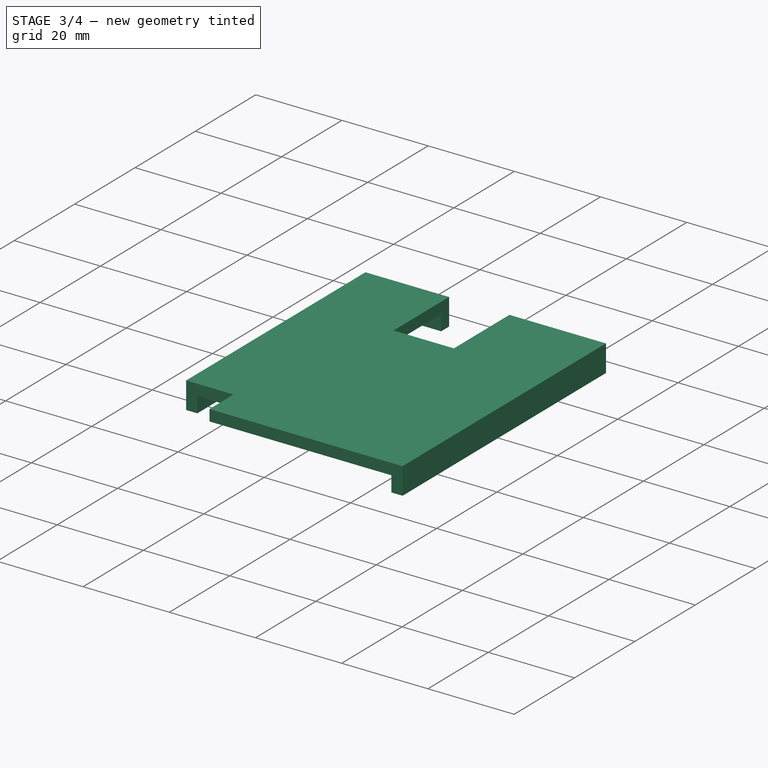
[diagram: stage 3 of 4 — iso view after this stage's code; geometry added in this stage tinted green]
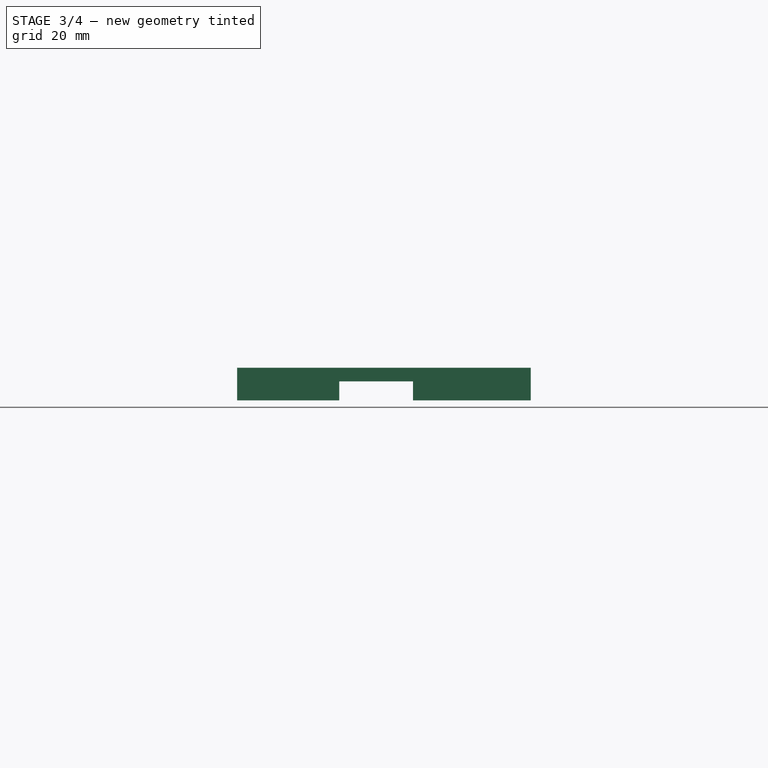
[diagram: stage 3 of 4 — front view after this stage's code; geometry added in this stage tinted green]
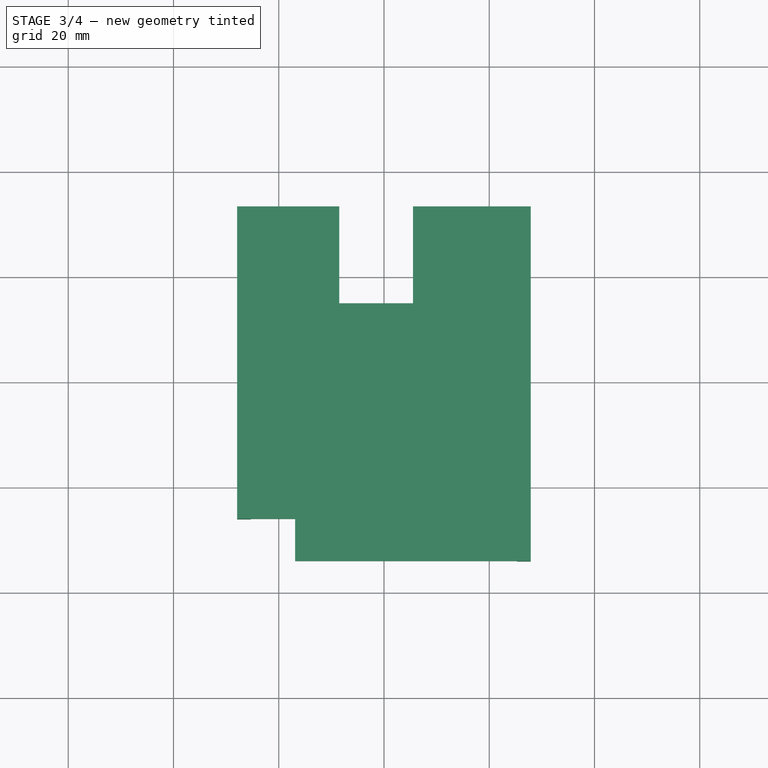
[diagram: stage 3 of 4 — top view after this stage's code; geometry added in this stage tinted green]
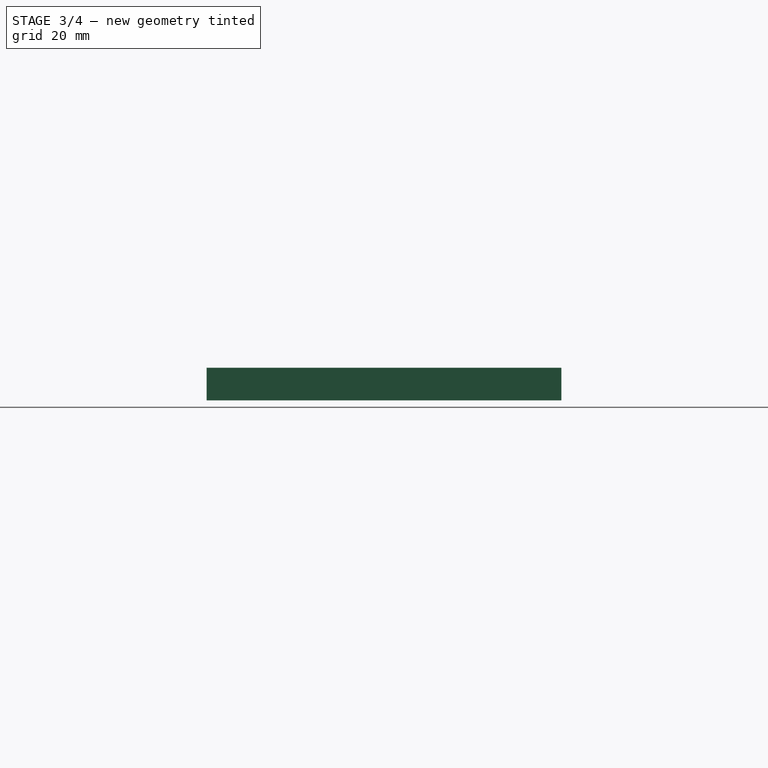
[diagram: stage 3 of 4 — right view after this stage's code; geometry added in this stage tinted green]
FEATURE [PartDesign::Pad] Pad006  label="TopBase_"
  Length = 1.2
  Length2 = 100
  Profile = -> Sketch008
  Reversed = true
  Type = 0
  expr: Length = Spreadsheet.WallThickness
FEATURE [PartDesign::Pad] Pad007  label="TopWalls_"
  BaseFeature = -> Pad006
  Length = 5
  Length2 = 100
  Profile = -> Sketch007
  Reversed = true
  Type = 0
FEATURE [PartDesign::Body] Body  label="Bottom"
  Group = -> [Sketch,Pad,Sketch001,Pad001,Sketch002,Pad002,Sketch003,Pad003,Sketch004,Pad004,Sketch009,Pad005,Chamfer]
  Origin = -> Origin001
  Tip = -> Chamfer
FEATURE [Sketcher::SketchObject] Sketch012  label="TopEnforcement"
  AttachmentOffset = pos=(0,0,11) rot=(0,0,1;0rad)
  MapMode = 5
  Placement = pos=(0,0,11) rot=(0,0,1;0rad)
  Support = -> [XY_Plane002]
  expr: Constraints[72] = TopBase.Constraints.USBDepth
  expr: Constraints[71] = TopBase.Constraints.USBRight
  expr: Constraints[70] = TopBase.Constraints.USBLeft
  expr: Constraints[46] = TopWalls.Constraints.Thickness
  expr: Constraints[32] = Base.Constraints.CoverLength
  expr: Constraints[29] = Base.Constraints.CoverLength - Base.Constraints.CoverCutLength
  expr: Constraints[26] = Spreadsheet.WallThickness + Spreadsheet.Tolerance
  expr: Constraints.Length = Spreadsheet.BoardLength
  expr: Constraints.Width = Spreadsheet.BoardWidth
  expr: Constraints[48] = TopBase.Constraints.CutWidth
  expr: AttachmentOffset.Base.z = TopBase.AttachmentOffset.Base.z - TopBase_.Length
  sketch-geometry (30):
    g0: LineSegment [constr] StartX=-26.5 StartY=52 StartZ=0 EndX=26.5 EndY=52 EndZ=0
    g1: LineSegment [constr] StartX=26.5 StartY=52 StartZ=0 EndX=26.5 EndY=-52 EndZ=0
    g2: LineSegment [constr] StartX=26.5 StartY=-52 StartZ=0 EndX=-26.5 EndY=-52 EndZ=0
    g3: LineSegment [constr] StartX=-26.5 StartY=-52 StartZ=0 EndX=-26.5 EndY=52 EndZ=0
    g4: LineSegment [constr] StartX=27.9 StartY=-53.4 StartZ=0 EndX=-27.9 EndY=-53.4 EndZ=0
    g5: LineSegment [constr] StartX=-26.5 StartY=52 StartZ=0 EndX=-26.5 EndY=53.4 EndZ=0
    g6: LineSegment [constr] StartX=26.5 StartY=-52 StartZ=0 EndX=26.5 EndY=-53.4 EndZ=0
    g7: LineSegment [constr] StartX=-26.5 StartY=-52 StartZ=0 EndX=-27.9 EndY=-52 EndZ=0
    g8: LineSegment [constr] StartX=-27.9 StartY=53.4 StartZ=0 EndX=27.9 EndY=53.4 EndZ=0
    g9: LineSegment [constr] StartX=-27.9 StartY=-53.4 StartZ=0 EndX=-27.9 EndY=53.4 EndZ=0
    g10: LineSegment [constr] StartX=27.9 StartY=53.4 StartZ=0 EndX=27.9 EndY=-53.4 EndZ=0
    g11: LineSegment StartX=-27.9 StartY=-6 StartZ=0 EndX=-16.9 EndY=-6 EndZ=0
    g12: LineSegment StartX=-16.9 StartY=-14 StartZ=0 EndX=27.9 EndY=-14 EndZ=0
    g13: LineSegment [constr] StartX=26.5 StartY=52 StartZ=0 EndX=27.9 EndY=52 EndZ=0
    g14: LineSegment StartX=-27.9 StartY=-6 StartZ=0 EndX=-27.9 EndY=-3.4 EndZ=0
    g15: LineSegment StartX=27.9 StartY=-14 StartZ=0 EndX=27.9 EndY=-11.4 EndZ=0
    g16: LineSegment StartX=-27.9 StartY=-3.4 StartZ=0 EndX=-14.3 EndY=-3.4 EndZ=0
    g17: LineSegment StartX=-16.9 StartY=-6 StartZ=0 EndX=-16.9 EndY=-14 EndZ=0
    g18: LineSegment StartX=-14.3 StartY=-3.4 StartZ=0 EndX=-14.3 EndY=-11.4 EndZ=0
    g19: LineSegment StartX=-14.3 StartY=-11.4 StartZ=0 EndX=27.9 EndY=-11.4 EndZ=0
    g20: LineSegment [constr] StartX=-16.9 StartY=-6 StartZ=0 EndX=-14.3 EndY=-6 EndZ=0
    g21: LineSegment StartX=-8.5 StartY=53.4 StartZ=0 EndX=-8.5 EndY=35 EndZ=0
    g22: LineSegment StartX=-8.5 StartY=35 StartZ=0 EndX=5.5 EndY=35 EndZ=0
    g23: LineSegment StartX=5.5 StartY=35 StartZ=0 EndX=5.5 EndY=53.4 EndZ=0
    g24: LineSegment StartX=-8.5 StartY=53.4 StartZ=0 EndX=-11.1 EndY=53.4 EndZ=0
    g25: LineSegment StartX=-11.1 StartY=53.4 StartZ=0 EndX=-11.1 EndY=32.4 EndZ=0
    g26: LineSegment StartX=-11.1 StartY=32.4 StartZ=0 EndX=8.1 EndY=32.4 EndZ=0
    g27: LineSegment StartX=8.1 StartY=32.4 StartZ=0 EndX=8.1 EndY=53.4 EndZ=0
    g28: LineSegment StartX=8.1 StartY=53.4 StartZ=0 EndX=5.5 EndY=53.4 EndZ=0
    g29: LineSegment [constr] StartX=-8.5 StartY=35 StartZ=0 EndX=-8.5 EndY=32.4 EndZ=0
  constraints (90):
    c: Coincident(g0,g1)
    c: Coincident(g1,g2)
    c: Coincident(g2,g3)
    c: Coincident(g3,g0)
    c: Horizontal(g0)
    c: Horizontal(g2)
    c: Vertical(g1)
    c: Vertical(g3)
    c: DistanceY(g3,g3) = 104  'Length'
    c: DistanceX(g0,g0) = 53  'Width'
    c: Coincident(g5,g0)
    c: Vertical(g5)
    c: Coincident(g6,g1)
    c: PointOnObject(g6,g4)
    c: Vertical(g6)
    c: Coincident(g7,g2)
    c: Horizontal(g7)
    c: Equal(g6,g7)
    c: Horizontal(g8)
    c: Coincident(g9,g4)
    c: Vertical(g9)
    c: PointOnObject(g7,g9)
    c: Coincident(g10,g4)
    c: Vertical(g10)
    c: Symmetric(g1,g0,g-1)
    c: Equal(g7,g5)
    c: DistanceX(g7,g7) = 1.4
    c: Horizontal(g11)
    c: Horizontal(g12)
    c: DistanceY(g11,g0) = 58
    c: PointOnObject(g5,g8)
    c: Coincident(g8,g9)
    c: DistanceY(g12,g0) = 66
    c: Coincident(g8,g10)
    c: Horizontal(g4)
    c: Coincident(g13,g0)
    c: PointOnObject(g13,g10)
    c: Horizontal(g13)
    c: Equal(g7,g5)
    c: Equal(g5,g13)
    c: PointOnObject(g11,g9)
    c: PointOnObject(g12,g10)
    c: Coincident(g14,g11)
    c: PointOnObject(g14,g9)
    c: Coincident(g15,g12)
    c: PointOnObject(g15,g10)
    c: DistanceY(g14,g14) = 2.6
    c: Equal(g14,g15)
    c: DistanceX(g11,g11) = 11
    c: Coincident(g16,g14)
    c: Horizontal(g16)
    c: Coincident(g17,g11)
    c: Vertical(g17)
    c: Coincident(g17,g12)
    c: Coincident(g16,g18)
    c: Vertical(g18)
    c: Coincident(g18,g19)
    c: Coincident(g19,g15)
    c: Horizontal(g19)
    c: Coincident(g20,g11)
    c: PointOnObject(g20,g18)
    c: Horizontal(g20)
    c: Equal(g20,g15)
    c: PointOnObject(g21,g8)
    c: Vertical(g21)
    c: Coincident(g21,g22)
    c: Horizontal(g22)
    c: Coincident(g22,g23)
    c: PointOnObject(g23,g8)
    c: Vertical(g23)
    c: DistanceX(g0,g21) = 18
    c: DistanceX(g23,g0) = 21
    c: DistanceY(g22,g0) = 17
    c: Coincident(g21,g24)
    c: PointOnObject(g24,g8)
    c: Coincident(g24,g25)
    c: Vertical(g25)
    c: Coincident(g25,g26)
    c: Horizontal(g26)
    c: Coincident(g26,g27)
    c: PointOnObject(g27,g8)
    c: Vertical(g27)
    c: Coincident(g27,g28)
    c: Coincident(g28,g23)
    c: Coincident(g29,g21)
    c: PointOnObject(g29,g26)
    c: Vertical(g29)
    c: Equal(g29,g24)
    c: Equal(g24,g28)
    c: Equal(g28,g20)
FEATURE [PartDesign::Pad] Pad009  label="TopEnforcement_"
  BaseFeature = -> Pad007
  Length = 1.4
  Length2 = 100
  Profile = -> Sketch012
  Reversed = true
  Type = 0
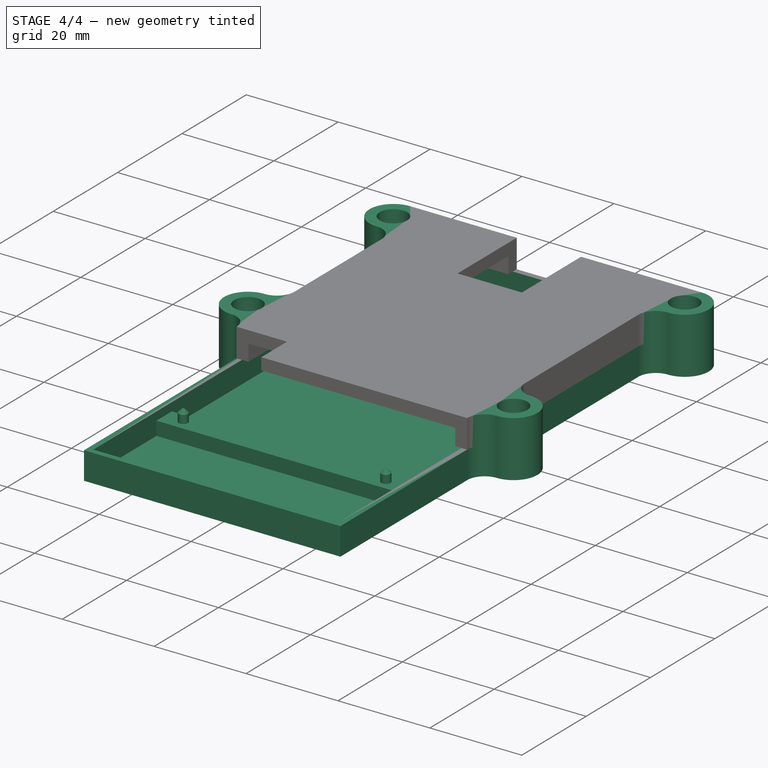
[diagram: stage 4 of 4 — iso view after this stage's code; geometry added in this stage tinted green]
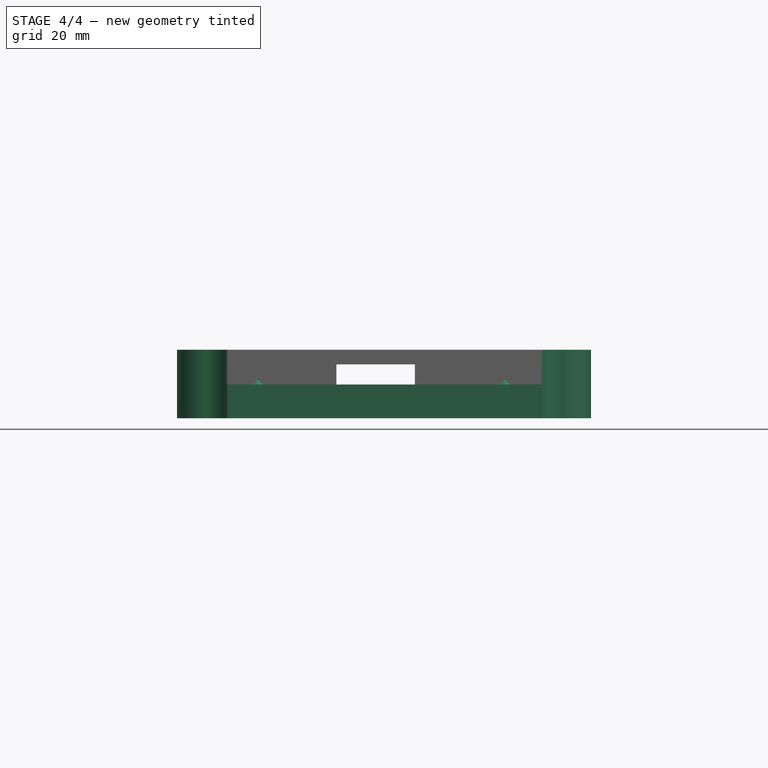
[diagram: stage 4 of 4 — front view after this stage's code; geometry added in this stage tinted green]
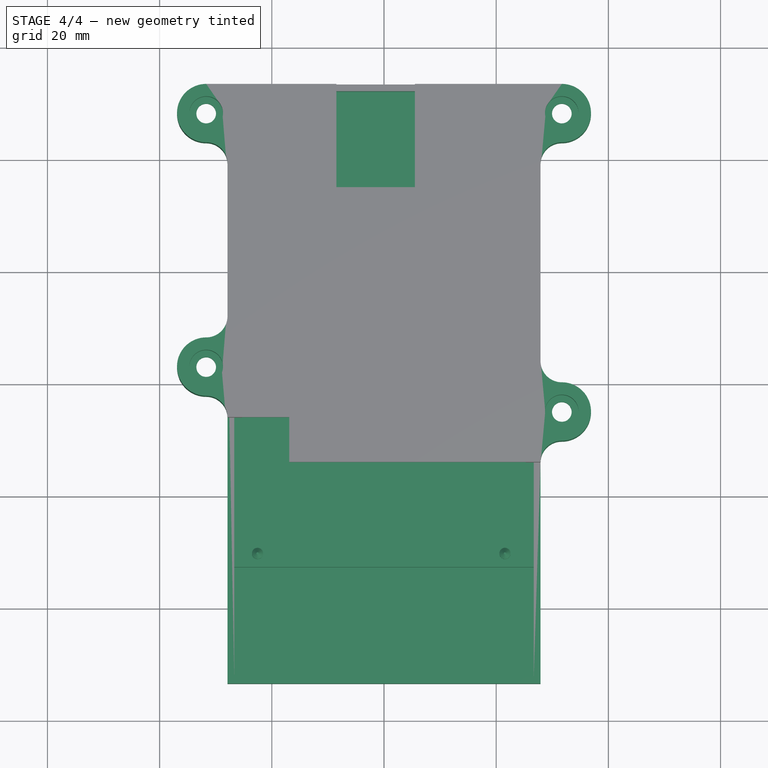
[diagram: stage 4 of 4 — top view after this stage's code; geometry added in this stage tinted green]
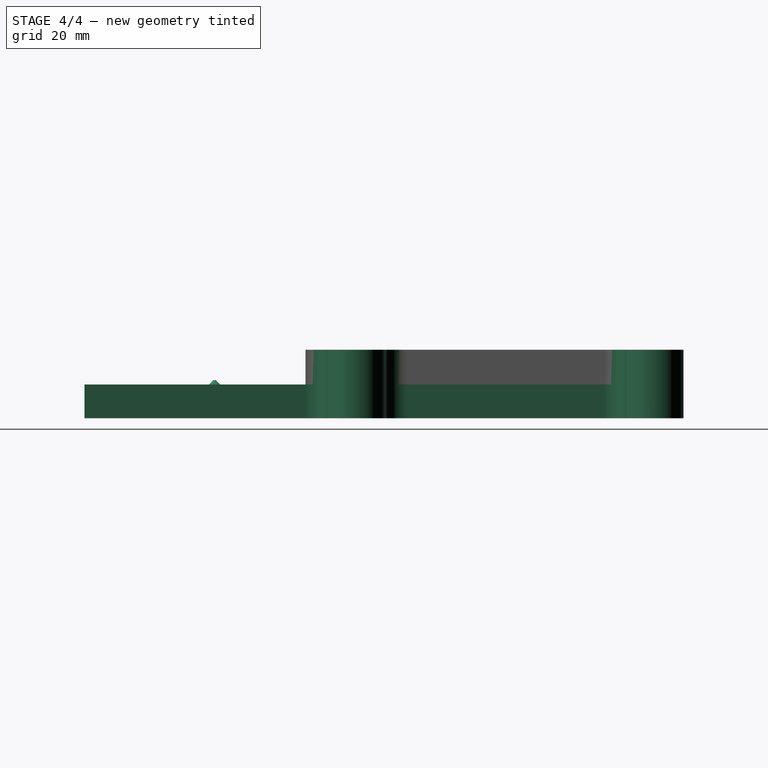
[diagram: stage 4 of 4 — right view after this stage's code; geometry added in this stage tinted green]
FEATURE [Sketcher::SketchObject] Sketch010  label="TopFlaps"
  AttachmentOffset = pos=(0,0,12.2) rot=(0,0,1;0rad)
  MapMode = 5
  Placement = pos=(0,0,12.2) rot=(0,0,1;0rad)
  Support = -> [XY_Plane002]
  expr: Constraints[138] = Base.Constraints.CoverLength
  expr: Constraints[137] = Base.Constraints.CoverLength - Base.Constraints.CoverCutLength
  expr: Constraints[57] = Screws.M3Radius
  expr: AttachmentOffset.Base.z = TopBase.AttachmentOffset.Base.z
  expr: Constraints.NutDistance = Spreadsheet.HoleOffsetX + Screws.M3NutRadius + Spreadsheet.WallThickness + Spreadsheet.Tolerance + 0.40000000000000002mm
  expr: Constraints[43] = Spreadsheet.WallThickness + Spreadsheet.Tolerance
  expr: Constraints.Length = Spreadsheet.BoardLength
  expr: Constraints.HoleOffsetX = Spreadsheet.HoleOffsetX
  expr: Constraints.HoleOffsetY = Spreadsheet.HoleOffsetY
  expr: Constraints.HoleXD = Spreadsheet.HoleXD
  expr: Constraints.HoleYD = Spreadsheet.HoleYD
  expr: Constraints.Width = Spreadsheet.BoardWidth
  sketch-geometry (49):
    g0: LineSegment [constr] StartX=-26.5 StartY=52 StartZ=0 EndX=26.5 EndY=52 EndZ=0
    g1: LineSegment [constr] StartX=26.5 StartY=52 StartZ=0 EndX=26.5 EndY=-52 EndZ=0
    g2: LineSegment [constr] StartX=26.5 StartY=-52 StartZ=0 EndX=-26.5 EndY=-52 EndZ=0
    g3: LineSegment [constr] StartX=-26.5 StartY=-52 StartZ=0 EndX=-26.5 EndY=52 EndZ=0
    g4: Circle [constr] CenterX=-22.5 CenterY=48.2 CenterZ=0 NormalX=0 NormalY=0 NormalZ=1 AngleXU=0 Radius=1.25
    g5: Circle [constr] CenterX=21.6 CenterY=48.2 CenterZ=0 NormalX=0 NormalY=0 NormalZ=1 AngleXU=0 Radius=1.25
    g6: LineSegment [constr] StartX=-22.5 StartY=48.2 StartZ=0 EndX=21.6 EndY=48.2 EndZ=0
    g7: LineSegment [constr] StartX=-22.5 StartY=48.2 StartZ=0 EndX=-22.5 EndY=-30.2 EndZ=0
    g8: LineSegment [constr] StartX=-22.5 StartY=-30.2 StartZ=0 EndX=21.6 EndY=-30.2 EndZ=0
    g9: Circle [constr] CenterX=-22.5 CenterY=-30.2 CenterZ=0 NormalX=0 NormalY=0 NormalZ=1 AngleXU=0 Radius=1.25
    g10: Circle [constr] CenterX=21.6 CenterY=-30.2 CenterZ=0 NormalX=0 NormalY=0 NormalZ=1 AngleXU=0 Radius=1.25
    g11: LineSegment [constr] StartX=-27.9 StartY=53.4 StartZ=0 EndX=27.9 EndY=53.4 EndZ=0
    g12: LineSegment [constr] StartX=27.9 StartY=-53.4 StartZ=0 EndX=-27.9 EndY=-53.4 EndZ=0
    g13: LineSegment [constr] StartX=-26.5 StartY=52 StartZ=0 EndX=-26.5 EndY=53.4 EndZ=0
    g14: LineSegment [constr] StartX=26.5 StartY=52 StartZ=0 EndX=27.9 EndY=52 EndZ=0
    g15: LineSegment [constr] StartX=26.5 StartY=-52 StartZ=0 EndX=26.5 EndY=-53.4 EndZ=0
    g16: LineSegment [constr] StartX=-26.5 StartY=-52 StartZ=0 EndX=-27.9 EndY=-52 EndZ=0
    g17: LineSegment StartX=27.9 StartY=53.4 StartZ=0 EndX=27.9 EndY=39.2 EndZ=0
    g18: LineSegment [constr] StartX=27.9 StartY=39.2 StartZ=0 EndX=27.9 EndY=4 EndZ=0
    g19: LineSegment StartX=-27.9 StartY=53.4 StartZ=0 EndX=-27.9 EndY=39.2 EndZ=0
    g20: LineSegment [constr] StartX=-27.9 StartY=39.2 StartZ=0 EndX=-27.9 EndY=12 EndZ=0
    g21: Circle CenterX=-31.7 CenterY=48.2 CenterZ=0 NormalX=0 NormalY=0 NormalZ=1 AngleXU=0 Radius=1.75
    g22: LineSegment StartX=-27.9 StartY=53.4 StartZ=0 EndX=-31.7 EndY=53.4 EndZ=0
    g23: ArcOfCircle CenterX=-31.7 CenterY=48.2 CenterZ=0 NormalX=0 NormalY=0 NormalZ=1 AngleXU=0 Radius=5.2 StartAngle=1.5708 EndAngle=4.71239
    g24: ArcOfCircle CenterX=-31.7 CenterY=39.2 CenterZ=0 NormalX=0 NormalY=0 NormalZ=1 AngleXU=0 Radius=3.8 StartAngle=0 EndAngle=1.5708
    g25: Circle CenterX=31.7 CenterY=48.2 CenterZ=0 NormalX=0 NormalY=0 NormalZ=1 AngleXU=0 Radius=1.75
    g26: LineSegment StartX=27.9 StartY=53.4 StartZ=0 EndX=31.7 EndY=53.4 EndZ=0
    g27: ArcOfCircle CenterX=31.7 CenterY=48.2 CenterZ=0 NormalX=0 NormalY=0 NormalZ=1 AngleXU=0 Radius=5.2 StartAngle=4.71239 EndAngle=7.85398
    g28: LineSegment [constr] StartX=31.7 StartY=53.4 StartZ=0 EndX=31.7 EndY=-14 EndZ=0
    g29: ArcOfCircle CenterX=31.7 CenterY=39.2 CenterZ=0 NormalX=0 NormalY=0 NormalZ=1 AngleXU=0 Radius=3.8 StartAngle=1.5708 EndAngle=3.14159
    g30: LineSegment [constr] StartX=-31.7 StartY=39.2 StartZ=0 EndX=-27.9 EndY=39.2 EndZ=0
    g31: LineSegment [constr] StartX=27.9 StartY=39.2 StartZ=0 EndX=31.7 EndY=39.2 EndZ=0
    g32: Circle CenterX=31.7 CenterY=-5 CenterZ=0 NormalX=0 NormalY=0 NormalZ=1 AngleXU=0 Radius=1.75
    g33: ArcOfCircle CenterX=31.7 CenterY=-5 CenterZ=0 NormalX=0 NormalY=0 NormalZ=1 AngleXU=0 Radius=5.2 StartAngle=4.71239 EndAngle=7.85398
    g34: ArcOfCircle CenterX=31.7 CenterY=4 CenterZ=0 NormalX=0 NormalY=0 NormalZ=1 AngleXU=0 Radius=3.8 StartAngle=3.14159 EndAngle=4.71239
    g35: LineSegment [constr] StartX=27.9 StartY=4 StartZ=0 EndX=31.7 EndY=4 EndZ=0
    g36: Circle CenterX=-31.7 CenterY=3 CenterZ=0 NormalX=0 NormalY=0 NormalZ=1 AngleXU=0 Radius=1.75
    g37: ArcOfCircle CenterX=-31.7 CenterY=3 CenterZ=0 NormalX=0 NormalY=0 NormalZ=1 AngleXU=0 Radius=5.2 StartAngle=1.5708 EndAngle=4.71239
    g38: ArcOfCircle CenterX=-31.7 CenterY=12 CenterZ=0 NormalX=0 NormalY=0 NormalZ=1 AngleXU=0 Radius=3.8 StartAngle=4.71239 EndAngle=6.28319
    g39: LineSegment [constr] StartX=-31.7 StartY=12 StartZ=0 EndX=-27.9 EndY=12 EndZ=0
    g40: LineSegment [constr] StartX=-31.7 StartY=53.4 StartZ=0 EndX=-31.7 EndY=-6 EndZ=0
    g41: LineSegment [constr] StartX=-27.9 StartY=-6 StartZ=0 EndX=-27.9 EndY=-53.4 EndZ=0
    g42: LineSegment [constr] StartX=27.9 StartY=-53.4 StartZ=0 EndX=27.9 EndY=-14 EndZ=0
    g43: ArcOfCircle CenterX=-31.7 CenterY=-6 CenterZ=0 NormalX=0 NormalY=0 NormalZ=1 AngleXU=0 Radius=3.8 StartAngle=0 EndAngle=1.5708
    g44: LineSegment [constr] StartX=-31.7 StartY=-6 StartZ=0 EndX=-27.9 EndY=-6 EndZ=0
    g45: LineSegment StartX=-27.9 StartY=12 StartZ=0 EndX=-27.9 EndY=-6 EndZ=0
    g46: LineSegment StartX=27.9 StartY=4 StartZ=0 EndX=27.9 EndY=-14 EndZ=0
    g47: LineSegment [constr] StartX=27.9 StartY=-14 StartZ=0 EndX=31.7 EndY=-14 EndZ=0
    g48: ArcOfCircle CenterX=31.7 CenterY=-14 CenterZ=0 NormalX=0 NormalY=0 NormalZ=1 AngleXU=0 Radius=3.8 StartAngle=1.5708 EndAngle=3.14159
  constraints (139):
    c: Coincident(g0,g1)
    c: Coincident(g1,g2)
    c: Coincident(g2,g3)
    c: Coincident(g3,g0)
    c: Horizontal(g0)
    c: Horizontal(g2)
    c: Vertical(g1)
    c: Vertical(g3)
    c: DistanceY(g3,g3) = 104  'Length'
    c: DistanceX(g0,g0) = 53  'Width'
    c: Coincident(g6,g4)
    c: Coincident(g6,g5)
    c: Horizontal(g6)
    c: DistanceX(g6,g6) = 44.1  'HoleXD'
    c: Equal(g4,g5)
    c: Radius(g4) = 1.25
    c: DistanceY(g4,g0) = 3.8  'HoleOffsetY'
    c: DistanceX(g0,g4) = 4  'HoleOffsetX'
    c: Coincident(g7,g4)
    c: Vertical(g7)
    c: DistanceY(g7,g7) = 78.4  'HoleYD'
    c: Coincident(g8,g7)
    c: Horizontal(g8)
    c: Equal(g8,g6)
    c: Coincident(g9,g7)
    c: Coincident(g10,g8)
    c: Equal(g5,g10)
    c: Equal(g10,g9)
    c: Horizontal(g11)
    c: Horizontal(g12)
    c: Coincident(g13,g0)
    c: PointOnObject(g13,g11)
    c: Vertical(g13)
    c: Coincident(g14,g0)
    c: Horizontal(g14)
    c: Coincident(g15,g1)
    c: PointOnObject(g15,g12)
    c: Vertical(g15)
    c: Coincident(g16,g2)
    c: Horizontal(g16)
    c: Equal(g13,g14)
    c: Equal(g14,g15)
    c: Equal(g15,g16)
    c: DistanceX(g14,g14) = 1.4
    c: DistanceX(g11,g11) = 55.8  'RealWidth'
    c: DistanceY(g12,g11) = 106.8  'RealHeight'
    c: Symmetric(g11,g12,g-1)
    c: Coincident(g17,g11)
    c: Vertical(g17)
    c: Coincident(g18,g17)
    c: Vertical(g18)
    c: Coincident(g11,g19)
    c: Vertical(g19)
    c: Coincident(g19,g20)
    c: Vertical(g20)
    c: PointOnObject(g14,g17)
    c: Equal(g17,g19)
    c: Radius(g21) = 1.75
    c: PointOnObject(g21,g6)
    c: Coincident(g22,g11)
    c: Horizontal(g22)
    c: DistanceX(g21,g4) = 9.2  'NutDistance'
    c: Coincident(g23,g21)
    c: Coincident(g23,g22)
    c: Radius(g23) = 5.2  'R01'
    c: Coincident(g24,g19)
    c: Equal(g25,g21)
    c: Symmetric(g25,g21,g-2)
    c: Coincident(g26,g11)
    c: Horizontal(g26)
    c: Coincident(g27,g25)
    c: Coincident(g27,g26)
    c: Coincident(g28,g26)
    c: Vertical(g28)
    c: PointOnObject(g25,g28)
    c: Coincident(g29,g17)
    c: Coincident(g30,g24)
    c: Coincident(g30,g19)
    c: Horizontal(g30)
    c: Coincident(g31,g17)
    c: Coincident(g31,g29)
    c: Horizontal(g31)
    c: Coincident(g37,g36)
    c: Equal(g32,g36)
    c: Coincident(g33,g32)
    c: Coincident(g34,g33)
    c: Coincident(g39,g38)
    c: Coincident(g37,g38)
    c: Horizontal(g39)
    c: Coincident(g35,g34)
    c: Horizontal(g35)
    c: Equal(g25,g32)
    c: Equal(g27,g33)
    c: Equal(g33,g37)
    c: Coincident(g24,g23)
    c: Coincident(g40,g22)
    c: Vertical(g40)
    c: PointOnObject(g23,g40)
    c: PointOnObject(g21,g40)
    c: PointOnObject(g36,g40)
    c: PointOnObject(g38,g40)
    c: PointOnObject(g37,g40)
    c: Vertical(g41)
    c: Coincident(g41,g12)
    c: Coincident(g27,g29)
    c: PointOnObject(g27,g28)
    c: PointOnObject(g29,g28)
    c: PointOnObject(g32,g28)
    c: PointOnObject(g33,g28)
    c: PointOnObject(g34,g28)
    c: Coincident(g42,g12)
    c: PointOnObject(g37,g40)
    c: Vertical(g42)
    c: Coincident(g43,g40)
    c: Coincident(g43,g37)
    c: Coincident(g44,g40)
    c: Horizontal(g44)
    c: PointOnObject(g16,g41)
    c: Coincident(g43,g41)
    c: Coincident(g44,g41)
    c: Coincident(g45,g20)
    c: Vertical(g45)
    c: Coincident(g41,g45)
    c: Coincident(g20,g38)
    c: Coincident(g20,g39)
    c: Coincident(g18,g34)
    c: Coincident(g18,g35)
    c: Coincident(g46,g18)
    c: Vertical(g46)
    c: Coincident(g46,g42)
    c: Coincident(g47,g42)
    c: Coincident(g47,g28)
    c: Horizontal(g47)
    c: Coincident(g48,g28)
    c: Coincident(g48,g33)
    c: Coincident(g48,g42)
    c: PointOnObject(g33,g28)
    c: DistanceY(g41,g0) = 58
    c: DistanceY(g42,g0) = 66
FEATURE [Sketcher::SketchObject] Sketch011  label="TopFlaps001"
  AttachmentOffset = pos=(0,0,12.2) rot=(0,0,1;0rad)
  MapMode = 5
  Placement = pos=(0,0,12.2) rot=(0,0,1;0rad)
  Support = -> [XY_Plane002]
  expr: Constraints[136] = Base.Constraints.CoverLength
  expr: Constraints[135] = Base.Constraints.CoverLength - Base.Constraints.CoverCutLength
  expr: Constraints[55] = Screws.M3HeadRadius
  expr: Constraints.HoleXD = Spreadsheet.HoleXD
  expr: AttachmentOffset.Base.z = TopBase.AttachmentOffset.Base.z
  expr: Constraints.NutDistance = Spreadsheet.HoleOffsetX + Screws.M3NutRadius + Spreadsheet.WallThickness + Spreadsheet.Tolerance + 0.40000000000000002mm
  expr: Constraints[43] = Spreadsheet.WallThickness + Spreadsheet.Tolerance
  expr: Constraints.Length = Spreadsheet.BoardLength
  expr: Constraints.HoleOffsetX = Spreadsheet.HoleOffsetX
  expr: Constraints.HoleOffsetY = Spreadsheet.HoleOffsetY
  expr: Constraints.HoleYD = Spreadsheet.HoleYD
  expr: Constraints.Width = Spreadsheet.BoardWidth
  sketch-geometry (49):
    g0: LineSegment [constr] StartX=-26.5 StartY=52 StartZ=0 EndX=26.5 EndY=52 EndZ=0
    g1: LineSegment [constr] StartX=26.5 StartY=52 StartZ=0 EndX=26.5 EndY=-52 EndZ=0
    g2: LineSegment [constr] StartX=26.5 StartY=-52 StartZ=0 EndX=-26.5 EndY=-52 EndZ=0
    g3: LineSegment [constr] StartX=-26.5 StartY=-52 StartZ=0 EndX=-26.5 EndY=52 EndZ=0
    g4: Circle [constr] CenterX=-22.5 CenterY=48.2 CenterZ=0 NormalX=0 NormalY=0 NormalZ=1 AngleXU=0 Radius=1.25
    g5: Circle [constr] CenterX=21.6 CenterY=48.2 CenterZ=0 NormalX=0 NormalY=0 NormalZ=1 AngleXU=0 Radius=1.25
    g6: LineSegment [constr] StartX=-22.5 StartY=48.2 StartZ=0 EndX=21.6 EndY=48.2 EndZ=0
    g7: LineSegment [constr] StartX=-22.5 StartY=48.2 StartZ=0 EndX=-22.5 EndY=-30.2 EndZ=0
    g8: LineSegment [constr] StartX=-22.5 StartY=-30.2 StartZ=0 EndX=21.6 EndY=-30.2 EndZ=0
    g9: Circle [constr] CenterX=-22.5 CenterY=-30.2 CenterZ=0 NormalX=0 NormalY=0 NormalZ=1 AngleXU=0 Radius=1.25
    g10: Circle [constr] CenterX=21.6 CenterY=-30.2 CenterZ=0 NormalX=0 NormalY=0 NormalZ=1 AngleXU=0 Radius=1.25
    g11: LineSegment [constr] StartX=-27.9 StartY=53.4 StartZ=0 EndX=27.9 EndY=53.4 EndZ=0
    g12: LineSegment [constr] StartX=27.9 StartY=-53.4 StartZ=0 EndX=-27.9 EndY=-53.4 EndZ=0
    g13: LineSegment [constr] StartX=-26.5 StartY=52 StartZ=0 EndX=-26.5 EndY=53.4 EndZ=0
    g14: LineSegment [constr] StartX=26.5 StartY=52 StartZ=0 EndX=27.9 EndY=52 EndZ=0
    g15: LineSegment [constr] StartX=26.5 StartY=-52 StartZ=0 EndX=26.5 EndY=-53.4 EndZ=0
    g16: LineSegment [constr] StartX=-26.5 StartY=-52 StartZ=0 EndX=-27.9 EndY=-52 EndZ=0
    g17: LineSegment [constr] StartX=27.9 StartY=53.4 StartZ=0 EndX=27.9 EndY=39.2 EndZ=0
    g18: LineSegment [constr] StartX=27.9 StartY=39.2 StartZ=0 EndX=27.9 EndY=4 EndZ=0
    g19: LineSegment [constr] StartX=-27.9 StartY=53.4 StartZ=0 EndX=-27.9 EndY=39.2 EndZ=0
    g20: LineSegment [constr] StartX=-27.9 StartY=39.2 StartZ=0 EndX=-27.9 EndY=12 EndZ=0
    g21: Circle CenterX=-31.7 CenterY=48.2 CenterZ=0 NormalX=0 NormalY=0 NormalZ=1 AngleXU=0 Radius=3
    g22: LineSegment [constr] StartX=-27.9 StartY=53.4 StartZ=0 EndX=-31.7 EndY=53.4 EndZ=0
    g23: ArcOfCircle [constr] CenterX=-31.7 CenterY=48.2 CenterZ=0 NormalX=0 NormalY=0 NormalZ=1 AngleXU=0 Radius=5.2 StartAngle=1.5708 EndAngle=4.71239
    g24: ArcOfCircle [constr] CenterX=-31.7 CenterY=39.2 CenterZ=0 NormalX=0 NormalY=0 NormalZ=1 AngleXU=0 Radius=3.8 StartAngle=0 EndAngle=1.5708
    g25: Circle CenterX=31.7 CenterY=48.2 CenterZ=0 NormalX=0 NormalY=0 NormalZ=1 AngleXU=0 Radius=3
    g26: LineSegment [constr] StartX=27.9 StartY=53.4 StartZ=0 EndX=31.7 EndY=53.4 EndZ=0
    g27: ArcOfCircle [constr] CenterX=31.7 CenterY=48.2 CenterZ=0 NormalX=0 NormalY=0 NormalZ=1 AngleXU=0 Radius=5.2 StartAngle=4.71239 EndAngle=7.85398
    g28: LineSegment [constr] StartX=31.7 StartY=53.4 StartZ=0 EndX=31.7 EndY=-14 EndZ=0
    g29: ArcOfCircle [constr] CenterX=31.7 CenterY=39.2 CenterZ=0 NormalX=0 NormalY=0 NormalZ=1 AngleXU=0 Radius=3.8 StartAngle=1.5708 EndAngle=3.14159
    g30: LineSegment [constr] StartX=-31.7 StartY=39.2 StartZ=0 EndX=-27.9 EndY=39.2 EndZ=0
    g31: LineSegment [constr] StartX=27.9 StartY=39.2 StartZ=0 EndX=31.7 EndY=39.2 EndZ=0
    g32: Circle CenterX=31.7 CenterY=-5 CenterZ=0 NormalX=0 NormalY=0 NormalZ=1 AngleXU=0 Radius=3
    g33: ArcOfCircle [constr] CenterX=31.7 CenterY=-5 CenterZ=0 NormalX=0 NormalY=0 NormalZ=1 AngleXU=0 Radius=5.2 StartAngle=4.71239 EndAngle=7.85398
    g34: ArcOfCircle [constr] CenterX=31.7 CenterY=4 CenterZ=0 NormalX=0 NormalY=0 NormalZ=1 AngleXU=0 Radius=3.8 StartAngle=3.14159 EndAngle=4.71239
    g35: LineSegment [constr] StartX=27.9 StartY=4 StartZ=0 EndX=31.7 EndY=4 EndZ=0
    g36: Circle CenterX=-31.7 CenterY=3 CenterZ=0 NormalX=0 NormalY=0 NormalZ=1 AngleXU=0 Radius=3
    g37: ArcOfCircle [constr] CenterX=-31.7 CenterY=3 CenterZ=0 NormalX=0 NormalY=0 NormalZ=1 AngleXU=0 Radius=5.2 StartAngle=1.5708 EndAngle=4.71239
    g38: ArcOfCircle [constr] CenterX=-31.7 CenterY=12 CenterZ=0 NormalX=0 NormalY=0 NormalZ=1 AngleXU=0 Radius=3.8 StartAngle=4.71239 EndAngle=6.28319
    g39: LineSegment [constr] StartX=-31.7 StartY=12 StartZ=0 EndX=-27.9 EndY=12 EndZ=0
    g40: LineSegment [constr] StartX=-31.7 StartY=53.4 StartZ=0 EndX=-31.7 EndY=-6 EndZ=0
    g41: LineSegment [constr] StartX=-27.9 StartY=-6 StartZ=0 EndX=-27.9 EndY=-53.4 EndZ=0
    g42: LineSegment [constr] StartX=27.9 StartY=-53.4 StartZ=0 EndX=27.9 EndY=-14 EndZ=0
    g43: ArcOfCircle [constr] CenterX=-31.7 CenterY=-6 CenterZ=0 NormalX=0 NormalY=0 NormalZ=1 AngleXU=0 Radius=3.8 StartAngle=0 EndAngle=1.5708
    g44: LineSegment [constr] StartX=-31.7 StartY=-6 StartZ=0 EndX=-27.9 EndY=-6 EndZ=0
    g45: LineSegment [constr] StartX=-27.9 StartY=12 StartZ=0 EndX=-27.9 EndY=-6 EndZ=0
    g46: LineSegment [constr] StartX=27.9 StartY=4 StartZ=0 EndX=27.9 EndY=-14 EndZ=0
    g47: LineSegment [constr] StartX=27.9 StartY=-14 StartZ=0 EndX=31.7 EndY=-14 EndZ=0
    g48: ArcOfCircle [constr] CenterX=31.7 CenterY=-14 CenterZ=0 NormalX=0 NormalY=0 NormalZ=1 AngleXU=0 Radius=3.8 StartAngle=1.5708 EndAngle=3.14159
  constraints (137):
    c: Coincident(g0,g1)
    c: Coincident(g1,g2)
    c: Coincident(g2,g3)
    c: Coincident(g3,g0)
    c: Horizontal(g0)
    c: Horizontal(g2)
    c: Vertical(g1)
    c: Vertical(g3)
    c: DistanceY(g3,g3) = 104  'Length'
    c: DistanceX(g0,g0) = 53  'Width'
    c: Coincident(g6,g4)
    c: Coincident(g6,g5)
    c: Horizontal(g6)
    c: DistanceX(g6,g6) = 44.1  'HoleXD'
    c: Equal(g4,g5)
    c: Radius(g4) = 1.25
    c: DistanceY(g4,g0) = 3.8  'HoleOffsetY'
    c: DistanceX(g0,g4) = 4  'HoleOffsetX'
    c: Coincident(g7,g4)
    c: Vertical(g7)
    c: DistanceY(g7,g7) = 78.4  'HoleYD'
    c: Coincident(g8,g7)
    c: Horizontal(g8)
    c: Equal(g8,g6)
    c: Coincident(g9,g7)
    c: Coincident(g10,g8)
    c: Equal(g5,g10)
    c: Equal(g10,g9)
    c: Horizontal(g11)
    c: Horizontal(g12)
    c: Coincident(g13,g0)
    c: PointOnObject(g13,g11)
    c: Vertical(g13)
    c: Coincident(g14,g0)
    c: Horizontal(g14)
    c: Coincident(g15,g1)
    c: PointOnObject(g15,g12)
    c: Vertical(g15)
    c: Coincident(g16,g2)
    c: Horizontal(g16)
    c: Equal(g13,g14)
    c: Equal(g14,g15)
    c: Equal(g15,g16)
    c: DistanceX(g14,g14) = 1.4
    c: Symmetric(g11,g12,g-1)
    c: Coincident(g17,g11)
    c: Vertical(g17)
    c: Coincident(g18,g17)
    c: Vertical(g18)
    c: Coincident(g11,g19)
    c: Vertical(g19)
    c: Coincident(g19,g20)
    c: Vertical(g20)
    c: PointOnObject(g14,g17)
    c: Equal(g17,g19)
    c: Radius(g21) = 3
    c: PointOnObject(g21,g6)
    c: Coincident(g22,g11)
    c: Horizontal(g22)
    c: DistanceX(g21,g4) = 9.2  'NutDistance'
    c: Coincident(g23,g21)
    c: Coincident(g23,g22)
    c: Radius(g23) = 5.2  'R01'
    c: Coincident(g24,g19)
    c: Equal(g25,g21)
    c: Symmetric(g25,g21,g-2)
    c: Coincident(g26,g11)
    c: Horizontal(g26)
    c: Coincident(g27,g25)
    c: Coincident(g27,g26)
    c: Coincident(g28,g26)
    c: Vertical(g28)
    c: PointOnObject(g25,g28)
    c: Coincident(g29,g17)
    c: Coincident(g30,g24)
    c: Coincident(g30,g19)
    c: Horizontal(g30)
    c: Coincident(g31,g17)
    c: Coincident(g31,g29)
    c: Horizontal(g31)
    c: Coincident(g37,g36)
    c: Equal(g32,g36)
    c: Coincident(g33,g32)
    c: Coincident(g34,g33)
    c: Coincident(g39,g38)
    c: Coincident(g37,g38)
    c: Horizontal(g39)
    c: Coincident(g35,g34)
    c: Horizontal(g35)
    c: Equal(g25,g32)
    c: Equal(g27,g33)
    c: Equal(g33,g37)
    c: Coincident(g24,g23)
    c: Coincident(g40,g22)
    c: Vertical(g40)
    c: PointOnObject(g23,g40)
    c: PointOnObject(g21,g40)
    c: PointOnObject(g36,g40)
    c: PointOnObject(g38,g40)
    c: PointOnObject(g37,g40)
    c: Vertical(g41)
    c: Coincident(g41,g12)
    c: Coincident(g27,g29)
    c: PointOnObject(g27,g28)
    c: PointOnObject(g29,g28)
    c: PointOnObject(g32,g28)
    c: PointOnObject(g33,g28)
    c: PointOnObject(g34,g28)
    c: Coincident(g42,g12)
    c: PointOnObject(g37,g40)
    c: Vertical(g42)
    c: Coincident(g43,g40)
    c: Coincident(g43,g37)
    c: Coincident(g44,g40)
    c: Horizontal(g44)
    c: PointOnObject(g16,g41)
    c: Coincident(g43,g41)
    c: Coincident(g44,g41)
    c: Coincident(g45,g20)
    c: Vertical(g45)
    c: Coincident(g41,g45)
    c: Coincident(g20,g38)
    c: Coincident(g20,g39)
    c: Coincident(g18,g34)
    c: Coincident(g18,g35)
    c: Coincident(g46,g18)
    c: Vertical(g46)
    c: Coincident(g46,g42)
    c: Coincident(g47,g42)
    c: Coincident(g47,g28)
    c: Horizontal(g47)
    c: Coincident(g48,g28)
    c: Coincident(g48,g33)
    c: Coincident(g48,g42)
    c: PointOnObject(g33,g28)
    c: DistanceY(g41,g0) = 58
    c: DistanceY(g28,g14) = 66
FEATURE [PartDesign::Chamfer] Chamfer
  Base = -> Pad005 [Edge93,Edge87,Edge89,Edge91]
  BaseFeature = -> Pad005
  Size = 0.8
FEATURE [PartDesign::Pad] Pad008  label="TopFlaps_"
  BaseFeature = -> Pad009
  Length = 6.2
  Length2 = 100
  Profile = -> Sketch010
  Refine = true
  Reversed = true
  Type = 0
  expr: Length = TopBase_.Length + TopWalls_.Length
FEATURE [PartDesign::Pocket] Pocket
  BaseFeature = -> Pad008
  Length = 5
  Length2 = 100
  Profile = -> Sketch011
  Type = 0
  expr: Length = TopFlaps_.Length - 1.2mm
FEATURE [PartDesign::Body] Body001  label="Top"
  Group = -> [Sketch008,Sketch007,Pad006,Pad007,Pad009,Sketch010,Pad008,Sketch011,Pocket,Sketch012]
  Origin = -> Origin002
  Tip = -> Pocket
FEATURE [App::Part] Part
  Group = -> [Body,Body001]
  License = CC BY 3.0
  LicenseURL = http://creativecommons.org/licenses/by/3.0/
  Origin = -> Origin
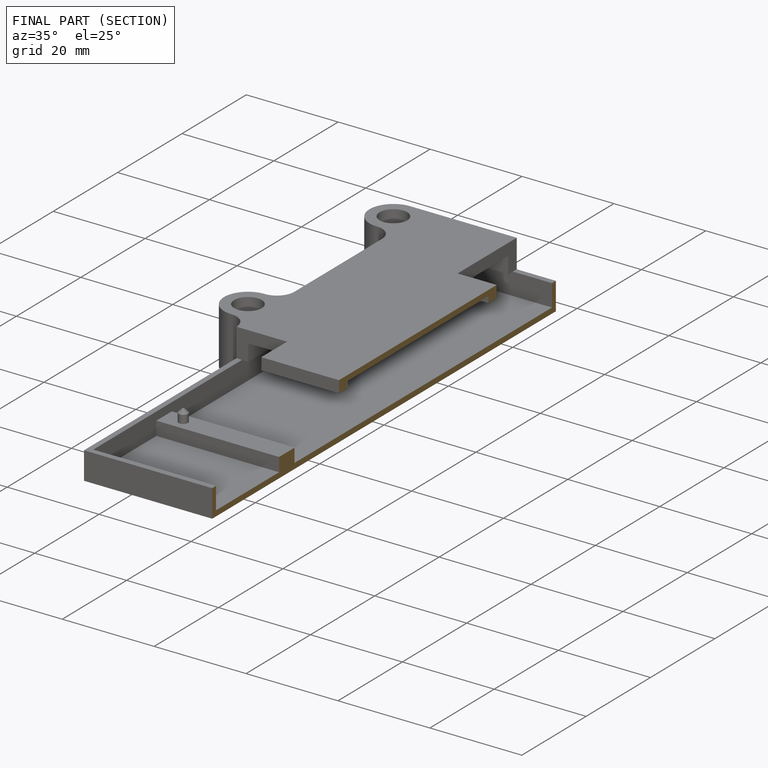
[diagram: finished part — half-section view (interior)]
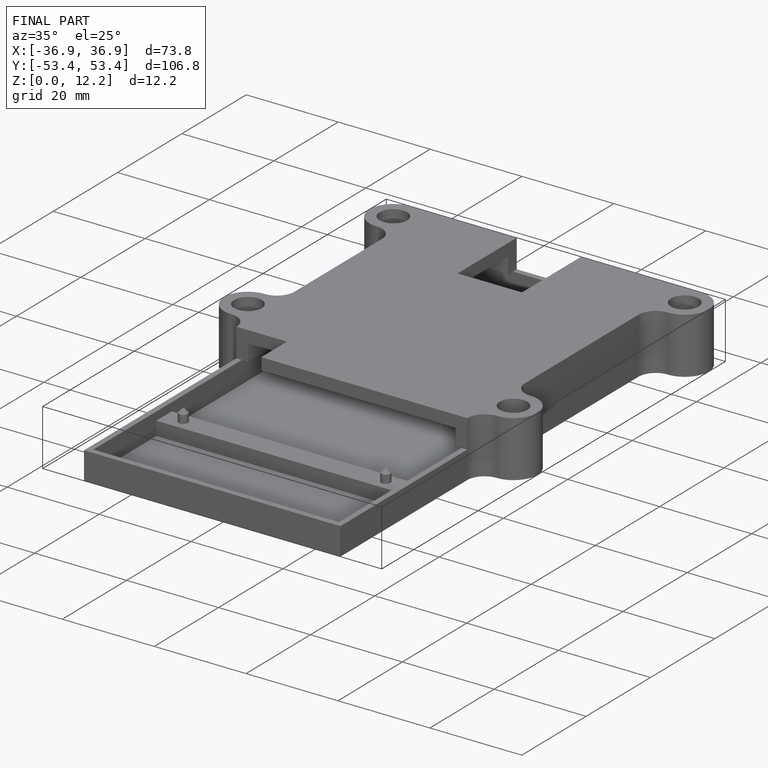
[diagram: finished part — iso view with bounding-box wireframe]
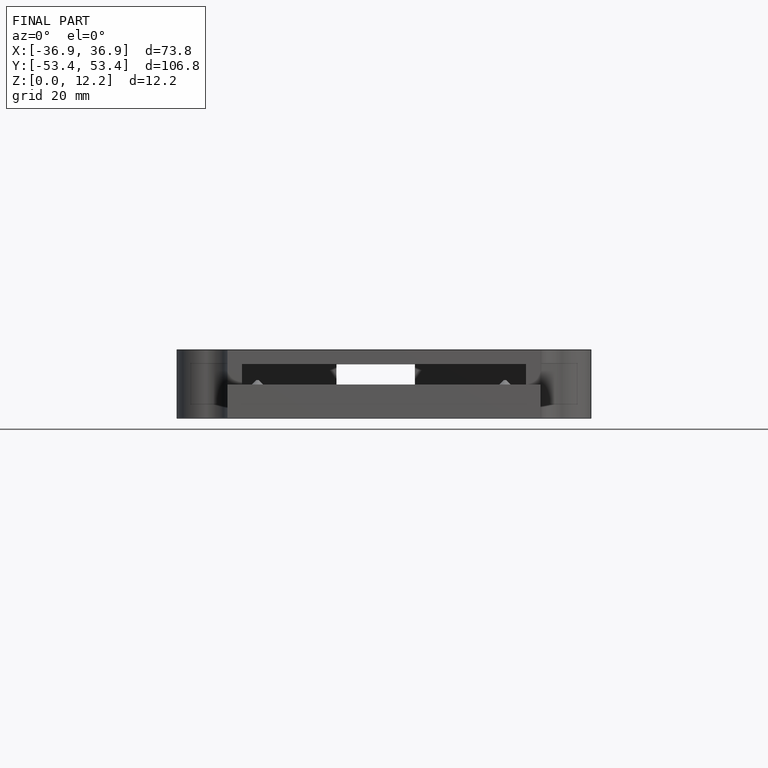
[diagram: finished part — front view with bounding-box wireframe]
